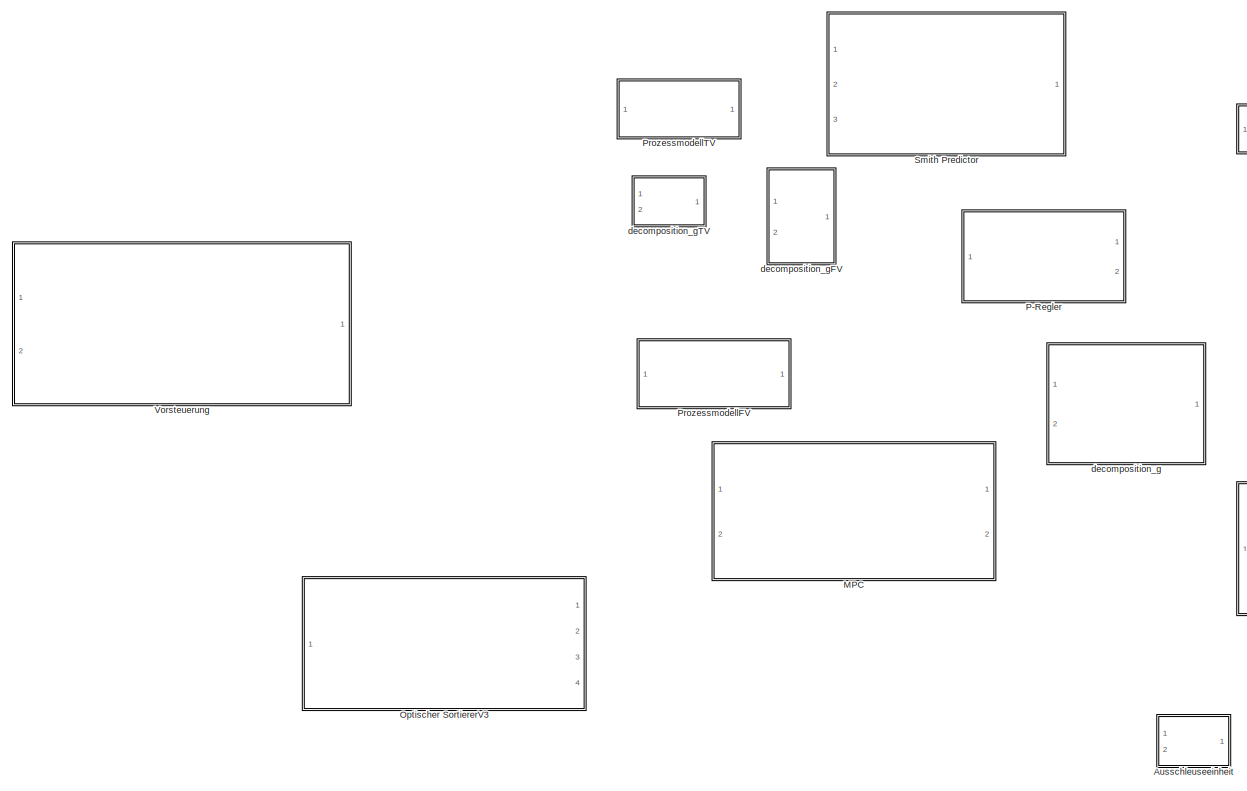
[diagram: root canvas - part 1/2, left side, full height]
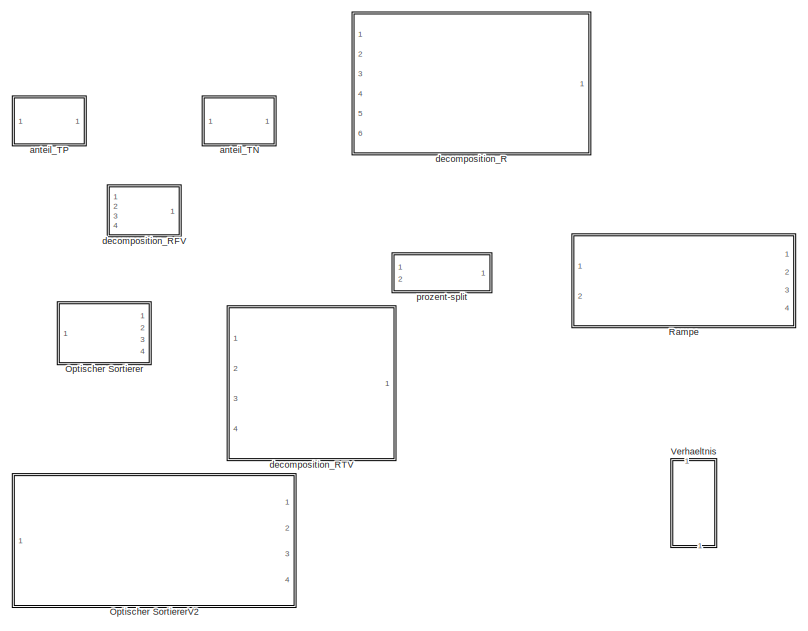
[diagram: root canvas - part 2/2, right side, full height]
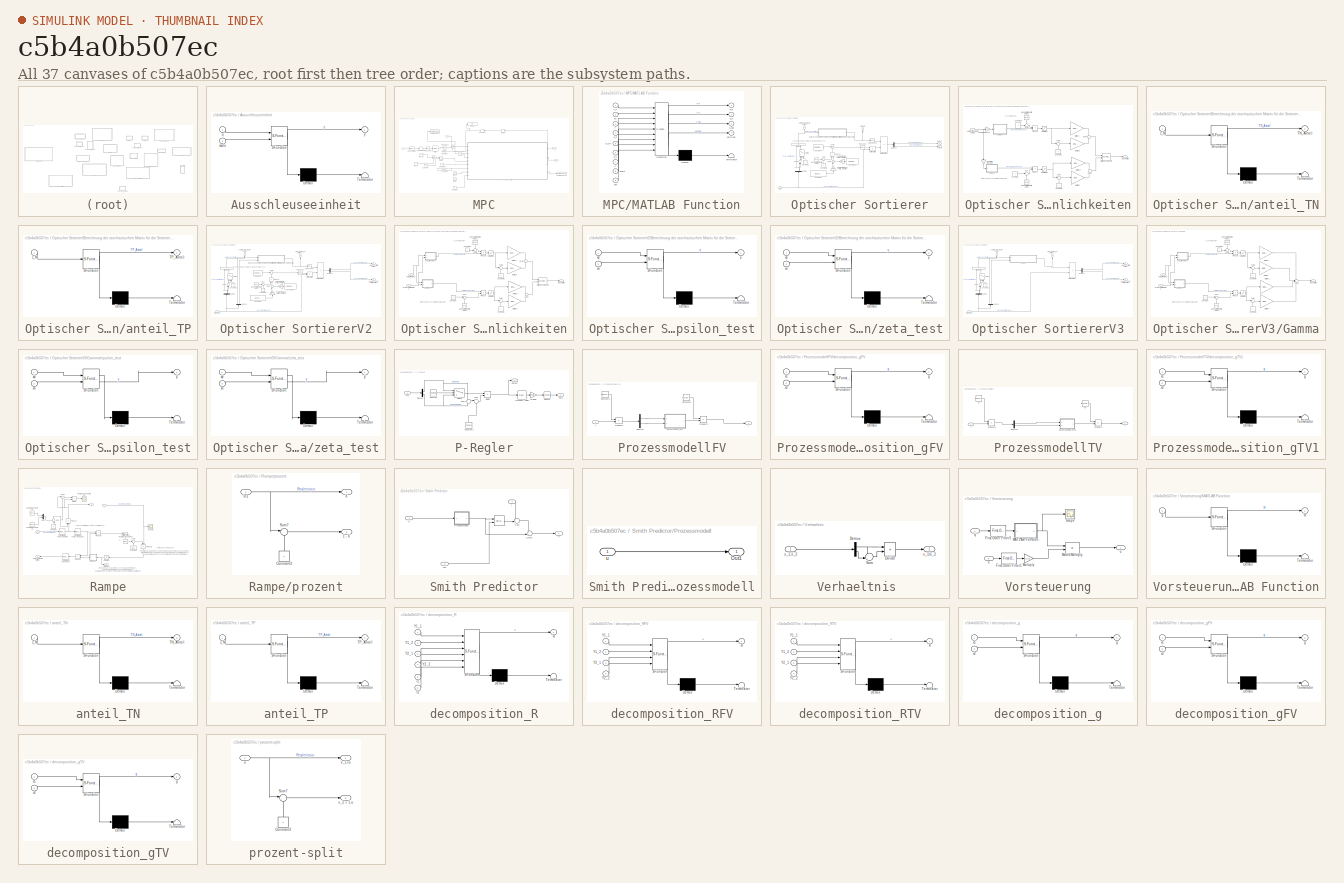
[diagram: thumbnail index - all 37 canvases of the model, root first then tree order]
MODEL slx_c5b4a0b507ec
KIND library
CONFIG AbsTol = auto
CONFIG EnableMultiTasking = off
CONFIG FixedStep = auto
CONFIG MaxStep = auto
CONFIG MinStep = auto
CONFIG RelTol = 1e-3
CONFIG SampleTimeConstraint = Unconstrained
CONFIG SolverName = VariableStepAuto
CONFIG StartTime = 0.0
CONFIG StopTime = 10.0
BLOCK [SubSystem] Ausschleuseeinheit
  ErrorFcn = Stateflow.Translate.translate
  PermitHierarchicalResolution = ExplicitOnly
  Ports = [2, 1]
  RequestExecContextInheritance = off
  SFBlockType = MATLAB Function
  TreatAsAtomicUnit = on
BLOCK [Demux] Ausschleuseeinheit/ Demux 
  Outputs = 1
  Ports = [1, 1]
BLOCK [S-Function] Ausschleuseeinheit/ SFunction 
  EnableBusSupport = off
  FunctionName = sf_sfun
  PortCounts = [2 2]
  Ports = [2, 2]
  SFcnIsStateOwnerBlock = off
  SFunctionDeploymentMode = off
  Tag = Stateflow S-Function 17
BLOCK [Terminator] Ausschleuseeinheit/ Terminator 
BLOCK [Inport] Ausschleuseeinheit/q
BLOCK [Inport] Ausschleuseeinheit/scale
  Port = 2
BLOCK [Outport] Ausschleuseeinheit/y
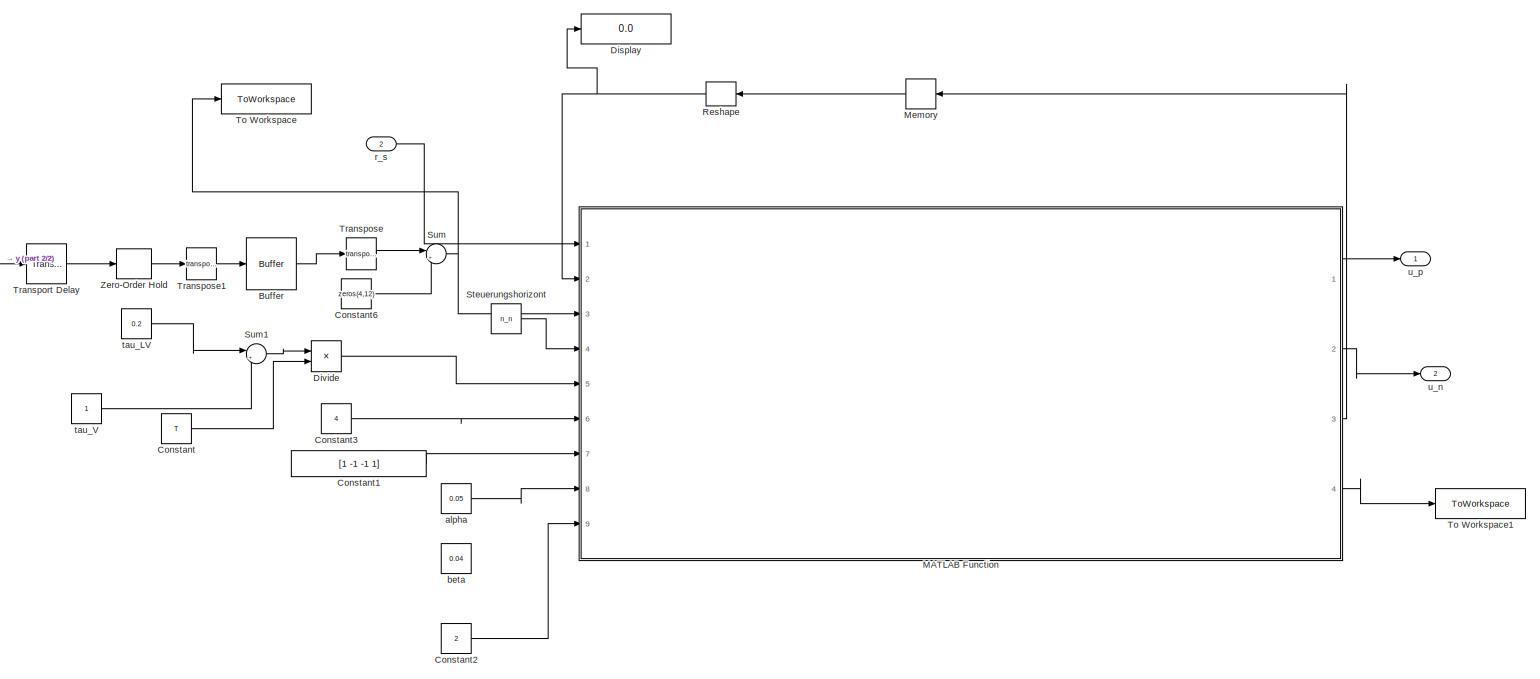
[diagram: MPC - part 1/2, most of the canvas]
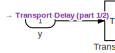
[diagram: MPC - part 2/2, middle left region]
BLOCK [SubSystem] MPC
  Ports = [2, 2]
  RequestExecContextInheritance = off
BLOCK [Buffer] MPC/Buffer
  N = n_n
  OutputFrames = off
  V = n_n-1
BLOCK [Constant] MPC/Constant
  Value = T
BLOCK [Constant] MPC/Constant1
  Value = [1 -1 -1 1]
BLOCK [Constant] MPC/Constant2
  Value = 2
BLOCK [Constant] MPC/Constant3
  Value = 4
BLOCK [Constant] MPC/Constant6
  Value = zeros(4,12)
BLOCK [Display] MPC/Display
  Decimation = 1
  Ports = [1]
BLOCK [Product] MPC/Divide
  Inputs = */
  Ports = [2, 1]
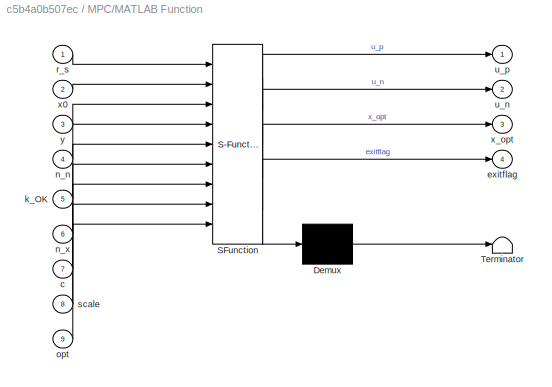
BLOCK [SubSystem] MPC/MATLAB Function
  ErrorFcn = Stateflow.Translate.translate
  PermitHierarchicalResolution = ExplicitOnly
  Ports = [9, 4]
  RequestExecContextInheritance = off
  SFBlockType = MATLAB Function
  SystemSampleTime = T
  TreatAsAtomicUnit = on
BLOCK [Demux] MPC/MATLAB Function/ Demux 
  Outputs = 1
  Ports = [1, 1]
BLOCK [S-Function] MPC/MATLAB Function/ SFunction 
  EnableBusSupport = off
  FunctionName = sf_sfun
  PortCounts = [9 5]
  Ports = [9, 5]
  SFcnIsStateOwnerBlock = off
  SFunctionDeploymentMode = off
  Tag = Stateflow S-Function 4
BLOCK [Terminator] MPC/MATLAB Function/ Terminator 
BLOCK [Inport] MPC/MATLAB Function/c
  Port = 7
BLOCK [Outport] MPC/MATLAB Function/exitflag
  Port = 4
BLOCK [Inport] MPC/MATLAB Function/k_OK
  Port = 5
BLOCK [Inport] MPC/MATLAB Function/n_n
  Port = 4
BLOCK [Inport] MPC/MATLAB Function/n_x
  Port = 6
BLOCK [Inport] MPC/MATLAB Function/opt
  Port = 9
BLOCK [Inport] MPC/MATLAB Function/r_s
BLOCK [Inport] MPC/MATLAB Function/scale
  Port = 8
BLOCK [Outport] MPC/MATLAB Function/u_n
  Port = 2
BLOCK [Outport] MPC/MATLAB Function/u_p
BLOCK [Inport] MPC/MATLAB Function/x0
  Port = 2
BLOCK [Outport] MPC/MATLAB Function/x_opt
  Port = 3
BLOCK [Inport] MPC/MATLAB Function/y
  Port = 3
BLOCK [Memory] MPC/Memory
  NameLocation = top
BLOCK [Reshape] MPC/Reshape
  NameLocation = top
  OutputDimensionality = Customize
  OutputDimensions = [48,1]
  Ports = [1, 1]
BLOCK [Constant] MPC/Steuerungshorizont
  Value = n_n
BLOCK [Sum] MPC/Sum
  Inputs = |++
  Ports = [2, 1]
BLOCK [Sum] MPC/Sum1
  Inputs = |++
  Ports = [2, 1]
BLOCK [ToWorkspace] MPC/To Workspace
  FixptAsFi = on
  MaxDataPoints = inf
  Ports = [1]
  SampleTime = -1
  SaveFormat = Timeseries
  VariableName = y
BLOCK [ToWorkspace] MPC/To Workspace1
  FixptAsFi = on
  MaxDataPoints = inf
  Ports = [1]
  SampleTime = -1
  SaveFormat = Timeseries
  VariableName = simout
BLOCK [TransportDelay] MPC/Transport Delay
  DelayTime = tau_SK
  Ports = [1, 1]
BLOCK [Math] MPC/Transpose
  Operator = transpose
  Ports = [1, 1]
BLOCK [Math] MPC/Transpose1
  Operator = transpose
  Ports = [1, 1]
BLOCK [ZeroOrderHold] MPC/Zero-Order Hold
  SampleTime = 0.1
BLOCK [Constant] MPC/alpha
  Value = 0.05
BLOCK [Constant] MPC/beta
  Value = 0.04
BLOCK [Inport] MPC/r_s
  Port = 2
BLOCK [Constant] MPC/tau_LV
  Value = 0.2
BLOCK [Constant] MPC/tau_V
BLOCK [Outport] MPC/u_n
  Port = 2
BLOCK [Outport] MPC/u_p
BLOCK [Inport] MPC/y
BLOCK [SubSystem] Optischer Sortierer
  Ports = [1, 4]
  RequestExecContextInheritance = off
BLOCK [Outport] Optischer Sortierer/Anteil Schlechtpartikel pro s
  NameLocation = right
  Port = 3
BLOCK [Reference] Optischer Sortierer/Band-Limited White Noise  REF=simulink/Sources/Band-Limited
White Noise
  Ports = [0, 1]
  SourceBlock = simulink/Sources/Band-Limited\nWhite Noise
  SourceProductBaseCode = SL
  SourceType = Band-Limited White Noise.
BLOCK [SubSystem] Optischer Sortierer/Berechnung der stochastischen Matrix für die Sortiererwahrscheinlichkeiten
  Ports = [1, 1]
  RequestExecContextInheritance = off
BLOCK [Inport] Optischer Sortierer/Berechnung der stochastischen Matrix für die Sortiererwahrscheinlichkeiten/Anteil Schlechtpartikel pro s
BLOCK [Reference] Optischer Sortierer/Berechnung der stochastischen Matrix für die Sortiererwahrscheinlichkeiten/Band-Limited White Noise  REF=simulink/Sources/Band-Limited
White Noise
  NameLocation = right
  Ports = [0, 1]
  SourceBlock = simulink/Sources/Band-Limited\nWhite Noise
  SourceProductBaseCode = SL
  SourceType = Band-Limited White Noise.
BLOCK [Reference] Optischer Sortierer/Berechnung der stochastischen Matrix für die Sortiererwahrscheinlichkeiten/Band-Limited White Noise1  REF=simulink/Sources/Band-Limited
White Noise
  NameLocation = left
  Ports = [0, 1]
  SourceBlock = simulink/Sources/Band-Limited\nWhite Noise
  SourceProductBaseCode = SL
  SourceType = Band-Limited White Noise.
BLOCK [Constant] Optischer Sortierer/Berechnung der stochastischen Matrix für die Sortiererwahrscheinlichkeiten/Constant
BLOCK [Constant] Optischer Sortierer/Berechnung der stochastischen Matrix für die Sortiererwahrscheinlichkeiten/Constant1
  NameLocation = right
BLOCK [Constant] Optischer Sortierer/Berechnung der stochastischen Matrix für die Sortiererwahrscheinlichkeiten/Constant2
  NameLocation = right
BLOCK [Constant] Optischer Sortierer/Berechnung der stochastischen Matrix für die Sortiererwahrscheinlichkeiten/Constant3
BLOCK [Gain] Optischer Sortierer/Berechnung der stochastischen Matrix für die Sortiererwahrscheinlichkeiten/Dezimal in Prozent
  Gain = 100
BLOCK [Gain] Optischer Sortierer/Berechnung der stochastischen Matrix für die Sortiererwahrscheinlichkeiten/Dezimal in Prozent2
  Gain = 100
  NameLocation = left
BLOCK [Concatenate] Optischer Sortierer/Berechnung der stochastischen Matrix für die Sortiererwahrscheinlichkeiten/Matrix Concatenate
  Mode = Multidimensional array
  Ports = [2, 1]
BLOCK [Gain] Optischer Sortierer/Berechnung der stochastischen Matrix für die Sortiererwahrscheinlichkeiten/Multiply1
  Gain = [1 0 0 0; 0 1 0 0]
BLOCK [Gain] Optischer Sortierer/Berechnung der stochastischen Matrix für die Sortiererwahrscheinlichkeiten/Multiply2
  Gain = [1 0 0 0; 0 1 0 0]
BLOCK [Gain] Optischer Sortierer/Berechnung der stochastischen Matrix für die Sortiererwahrscheinlichkeiten/Multiply3
  Gain = [0 0 1 0; 0 0 0 1]
BLOCK [Gain] Optischer Sortierer/Berechnung der stochastischen Matrix für die Sortiererwahrscheinlichkeiten/Multiply4
  Gain = [0 0 1 0; 0 0 0 1]
BLOCK [Product] Optischer Sortierer/Berechnung der stochastischen Matrix für die Sortiererwahrscheinlichkeiten/Product
  Ports = [2, 1]
BLOCK [Product] Optischer Sortierer/Berechnung der stochastischen Matrix für die Sortiererwahrscheinlichkeiten/Product1
  Ports = [2, 1]
BLOCK [Saturate] Optischer Sortierer/Berechnung der stochastischen Matrix für die Sortiererwahrscheinlichkeiten/Saturation
  LowerLimit = 0
  UpperLimit = 1
BLOCK [Saturate] Optischer Sortierer/Berechnung der stochastischen Matrix für die Sortiererwahrscheinlichkeiten/Saturation1
  LowerLimit = 0
  UpperLimit = 1
BLOCK [Sum] Optischer Sortierer/Berechnung der stochastischen Matrix für die Sortiererwahrscheinlichkeiten/Sum
  Inputs = |++
  Ports = [2, 1]
BLOCK [Sum] Optischer Sortierer/Berechnung der stochastischen Matrix für die Sortiererwahrscheinlichkeiten/Sum1
  Inputs = |-+
  Ports = [2, 1]
BLOCK [Sum] Optischer Sortierer/Berechnung der stochastischen Matrix für die Sortiererwahrscheinlichkeiten/Sum2
  Inputs = +|+
  Ports = [2, 1]
BLOCK [Sum] Optischer Sortierer/Berechnung der stochastischen Matrix für die Sortiererwahrscheinlichkeiten/Sum3
  Inputs = ++|
  Ports = [2, 1]
BLOCK [Sum] Optischer Sortierer/Berechnung der stochastischen Matrix für die Sortiererwahrscheinlichkeiten/Sum5
  Inputs = |-+
  Ports = [2, 1]
BLOCK [Sum] Optischer Sortierer/Berechnung der stochastischen Matrix für die Sortiererwahrscheinlichkeiten/Sum6
  Inputs = +|+
  Ports = [2, 1]
BLOCK [SubSystem] Optischer Sortierer/Berechnung der stochastischen Matrix für die Sortiererwahrscheinlichkeiten/anteil_TN
  ErrorFcn = Stateflow.Translate.translate
  PermitHierarchicalResolution = ExplicitOnly
  Ports = [1, 1]
  RequestExecContextInheritance = off
  SFBlockType = MATLAB Function
  TreatAsAtomicUnit = on
BLOCK [Demux] Optischer Sortierer/Berechnung der stochastischen Matrix für die Sortiererwahrscheinlichkeiten/anteil_TN/ Demux 
  Outputs = 1
  Ports = [1, 1]
BLOCK [S-Function] Optischer Sortierer/Berechnung der stochastischen Matrix für die Sortiererwahrscheinlichkeiten/anteil_TN/ SFunction 
  EnableBusSupport = off
  FunctionName = sf_sfun
  PortCounts = [1 2]
  Ports = [1, 2]
  SFcnIsStateOwnerBlock = off
  SFunctionDeploymentMode = off
  Tag = Stateflow S-Function 5
BLOCK [Terminator] Optischer Sortierer/Berechnung der stochastischen Matrix für die Sortiererwahrscheinlichkeiten/anteil_TN/ Terminator 
BLOCK [Outport] Optischer Sortierer/Berechnung der stochastischen Matrix für die Sortiererwahrscheinlichkeiten/anteil_TN/TN_Anteil
BLOCK [Inport] Optischer Sortierer/Berechnung der stochastischen Matrix für die Sortiererwahrscheinlichkeiten/anteil_TN/c_N
BLOCK [SubSystem] Optischer Sortierer/Berechnung der stochastischen Matrix für die Sortiererwahrscheinlichkeiten/anteil_TP
  ErrorFcn = Stateflow.Translate.translate
  PermitHierarchicalResolution = ExplicitOnly
  Ports = [1, 1]
  RequestExecContextInheritance = off
  SFBlockType = MATLAB Function
  TreatAsAtomicUnit = on
BLOCK [Demux] Optischer Sortierer/Berechnung der stochastischen Matrix für die Sortiererwahrscheinlichkeiten/anteil_TP/ Demux 
  Outputs = 1
  Ports = [1, 1]
BLOCK [S-Function] Optischer Sortierer/Berechnung der stochastischen Matrix für die Sortiererwahrscheinlichkeiten/anteil_TP/ SFunction 
  EnableBusSupport = off
  FunctionName = sf_sfun
  PortCounts = [1 2]
  Ports = [1, 2]
  SFcnIsStateOwnerBlock = off
  SFunctionDeploymentMode = off
  Tag = Stateflow S-Function 6
BLOCK [Terminator] Optischer Sortierer/Berechnung der stochastischen Matrix für die Sortiererwahrscheinlichkeiten/anteil_TP/ Terminator 
BLOCK [Outport] Optischer Sortierer/Berechnung der stochastischen Matrix für die Sortiererwahrscheinlichkeiten/anteil_TP/TP_Anteil
BLOCK [Inport] Optischer Sortierer/Berechnung der stochastischen Matrix für die Sortiererwahrscheinlichkeiten/anteil_TP/c_N
BLOCK [Outport] Optischer Sortierer/Berechnung der stochastischen Matrix für die Sortiererwahrscheinlichkeiten/stoch. Matrix
BLOCK [Constant] Optischer Sortierer/Constant
  Value = [1 0 0 0; 0 0 0 1]
BLOCK [Constant] Optischer Sortierer/Constant1
  Value = [-1 0 1 0; 0 0 0 0]
BLOCK [Constant] Optischer Sortierer/Constant2
  NameLocation = right
BLOCK [Constant] Optischer Sortierer/Constant4
  NameLocation = top
  Value = [0 0 0 0; 0 1 0 -1]
BLOCK [Constant] Optischer Sortierer/Constant5
  NameLocation = right
BLOCK [Demux] Optischer Sortierer/Demux
  NameLocation = right
  Outputs = 2
  Ports = [1, 2]
BLOCK [Demux] Optischer Sortierer/Demux1
  Outputs = 2
  Ports = [1, 2]
BLOCK [Product] Optischer Sortierer/Divide
  Inputs = */
  NameLocation = right
  Ports = [2, 1]
BLOCK [Inport] Optischer Sortierer/In2
BLOCK [Product] Optischer Sortierer/Matrix Multiply
  Multiplication = Matrix(*)
  Ports = [2, 1]
BLOCK [Product] Optischer Sortierer/Matrix Multiply1
  Multiplication = Matrix(*)
  Ports = [2, 1]
BLOCK [Outport] Optischer Sortierer/Output
BLOCK [Outport] Optischer Sortierer/Output1
  Port = 2
BLOCK [Outport] Optischer Sortierer/Output2
  NameLocation = right
  Port = 4
BLOCK [Gain] Optischer Sortierer/Parameter \alpha = Anteil falsch detektierter Gutpartikel
  Gain = alpha
  NameLocation = right
BLOCK [Gain] Optischer Sortierer/Parameter \beta = Anteil falsch detektierter Schlechtpartikel
  Gain = beta
  NameLocation = top
BLOCK [Product] Optischer Sortierer/Product
  NameLocation = right
  Ports = [2, 1]
BLOCK [Sum] Optischer Sortierer/Sum
  Inputs = |++
  Ports = [2, 1]
BLOCK [Sum] Optischer Sortierer/Sum2
  Inputs = |++
  Ports = [2, 1]
BLOCK [Sum] Optischer Sortierer/Sum3
  Inputs = |++
  NameLocation = right
  Ports = [2, 1]
BLOCK [Sum] Optischer Sortierer/Sum4
  Inputs = ++|
  NameLocation = right
  Ports = [2, 1]
BLOCK [Switch] Optischer Sortierer/Switch
  Criteria = u2 > Threshold
  InputSameDT = off
  NameLocation = right
  SaturateOnIntegerOverflow = off
BLOCK [Math] Optischer Sortierer/Transpose
  Operator = transpose
  Ports = [1, 1]
BLOCK [Math] Optischer Sortierer/Transpose1
  Operator = transpose
  Ports = [1, 1]
BLOCK [SubSystem] Optischer SortiererV2
  AncestorBlock = library_schuettgut/Optischer Sortierer
  Ports = [1, 4]
  RequestExecContextInheritance = off
BLOCK [Outport] Optischer SortiererV2/Als GUT sortierte Partikel
BLOCK [Outport] Optischer SortiererV2/Als SCHLECHT sortierte Partikel
  Port = 2
BLOCK [Outport] Optischer SortiererV2/Anteil Schlechtpartikel pro s
  NameLocation = right
  Port = 3
BLOCK [Reference] Optischer SortiererV2/Band-Limited White Noise  REF=simulink/Sources/Band-Limited
White Noise
  Ports = [0, 1]
  SourceBlock = simulink/Sources/Band-Limited\nWhite Noise
  SourceProductBaseCode = SL
  SourceType = Band-Limited White Noise.
BLOCK [SubSystem] Optischer SortiererV2/Berechnung der stochastischen Matrix für die Sortiererwahrscheinlichkeiten
  Ports = [2, 1]
  RequestExecContextInheritance = off
BLOCK [Reference] Optischer SortiererV2/Berechnung der stochastischen Matrix für die Sortiererwahrscheinlichkeiten/Band-Limited White Noise  REF=simulink/Sources/Band-Limited
White Noise
  NameLocation = right
  Ports = [0, 1]
  SourceBlock = simulink/Sources/Band-Limited\nWhite Noise
  SourceProductBaseCode = SL
  SourceType = Band-Limited White Noise.
BLOCK [Reference] Optischer SortiererV2/Berechnung der stochastischen Matrix für die Sortiererwahrscheinlichkeiten/Band-Limited White Noise1  REF=simulink/Sources/Band-Limited
White Noise
  NameLocation = left
  Ports = [0, 1]
  SourceBlock = simulink/Sources/Band-Limited\nWhite Noise
  SourceProductBaseCode = SL
  SourceType = Band-Limited White Noise.
BLOCK [Constant] Optischer SortiererV2/Berechnung der stochastischen Matrix für die Sortiererwahrscheinlichkeiten/Constant
BLOCK [Constant] Optischer SortiererV2/Berechnung der stochastischen Matrix für die Sortiererwahrscheinlichkeiten/Constant1
  NameLocation = right
BLOCK [Constant] Optischer SortiererV2/Berechnung der stochastischen Matrix für die Sortiererwahrscheinlichkeiten/Constant2
  NameLocation = right
BLOCK [Constant] Optischer SortiererV2/Berechnung der stochastischen Matrix für die Sortiererwahrscheinlichkeiten/Constant3
BLOCK [Inport] Optischer SortiererV2/Berechnung der stochastischen Matrix für die Sortiererwahrscheinlichkeiten/Gutpartikel pro s
BLOCK [Concatenate] Optischer SortiererV2/Berechnung der stochastischen Matrix für die Sortiererwahrscheinlichkeiten/Matrix Concatenate
  Mode = Multidimensional array
  Ports = [2, 1]
BLOCK [Gain] Optischer SortiererV2/Berechnung der stochastischen Matrix für die Sortiererwahrscheinlichkeiten/Multiply1
  Gain = [1 0 0 0; 0 1 0 0]
BLOCK [Gain] Optischer SortiererV2/Berechnung der stochastischen Matrix für die Sortiererwahrscheinlichkeiten/Multiply2
  Gain = [1 0 0 0; 0 1 0 0]
BLOCK [Gain] Optischer SortiererV2/Berechnung der stochastischen Matrix für die Sortiererwahrscheinlichkeiten/Multiply3
  Gain = [0 0 1 0; 0 0 0 1]
BLOCK [Gain] Optischer SortiererV2/Berechnung der stochastischen Matrix für die Sortiererwahrscheinlichkeiten/Multiply4
  Gain = [0 0 1 0; 0 0 0 1]
BLOCK [Product] Optischer SortiererV2/Berechnung der stochastischen Matrix für die Sortiererwahrscheinlichkeiten/Product
  Ports = [2, 1]
BLOCK [Product] Optischer SortiererV2/Berechnung der stochastischen Matrix für die Sortiererwahrscheinlichkeiten/Product1
  Ports = [2, 1]
BLOCK [Saturate] Optischer SortiererV2/Berechnung der stochastischen Matrix für die Sortiererwahrscheinlichkeiten/Saturation
  LowerLimit = 0
  UpperLimit = 1
BLOCK [Saturate] Optischer SortiererV2/Berechnung der stochastischen Matrix für die Sortiererwahrscheinlichkeiten/Saturation1
  LowerLimit = 0
  UpperLimit = 1
BLOCK [Inport] Optischer SortiererV2/Berechnung der stochastischen Matrix für die Sortiererwahrscheinlichkeiten/Schlechtpartikel pro s
  Port = 2
BLOCK [Sum] Optischer SortiererV2/Berechnung der stochastischen Matrix für die Sortiererwahrscheinlichkeiten/Sum
  Inputs = |++
  Ports = [2, 1]
BLOCK [Sum] Optischer SortiererV2/Berechnung der stochastischen Matrix für die Sortiererwahrscheinlichkeiten/Sum1
  Inputs = |-+
  Ports = [2, 1]
BLOCK [Sum] Optischer SortiererV2/Berechnung der stochastischen Matrix für die Sortiererwahrscheinlichkeiten/Sum2
  Inputs = +|+
  Ports = [2, 1]
BLOCK [Sum] Optischer SortiererV2/Berechnung der stochastischen Matrix für die Sortiererwahrscheinlichkeiten/Sum3
  Inputs = ++|
  Ports = [2, 1]
BLOCK [Sum] Optischer SortiererV2/Berechnung der stochastischen Matrix für die Sortiererwahrscheinlichkeiten/Sum5
  Inputs = |-+
  Ports = [2, 1]
BLOCK [Sum] Optischer SortiererV2/Berechnung der stochastischen Matrix für die Sortiererwahrscheinlichkeiten/Sum6
  Inputs = +|+
  Ports = [2, 1]
BLOCK [SubSystem] Optischer SortiererV2/Berechnung der stochastischen Matrix für die Sortiererwahrscheinlichkeiten/epsilon_test
  ErrorFcn = Stateflow.Translate.translate
  PermitHierarchicalResolution = ExplicitOnly
  Ports = [2, 1]
  RequestExecContextInheritance = off
  SFBlockType = MATLAB Function
  TreatAsAtomicUnit = on
BLOCK [Demux] Optischer SortiererV2/Berechnung der stochastischen Matrix für die Sortiererwahrscheinlichkeiten/epsilon_test/ Demux 
  Outputs = 1
  Ports = [1, 1]
BLOCK [S-Function] Optischer SortiererV2/Berechnung der stochastischen Matrix für die Sortiererwahrscheinlichkeiten/epsilon_test/ SFunction 
  EnableBusSupport = off
  FunctionName = sf_sfun
  PortCounts = [2 2]
  Ports = [2, 2]
  SFcnIsStateOwnerBlock = off
  SFunctionDeploymentMode = off
  Tag = Stateflow S-Function 8
BLOCK [Terminator] Optischer SortiererV2/Berechnung der stochastischen Matrix für die Sortiererwahrscheinlichkeiten/epsilon_test/ Terminator 
BLOCK [Inport] Optischer SortiererV2/Berechnung der stochastischen Matrix für die Sortiererwahrscheinlichkeiten/epsilon_test/xn
  Port = 2
BLOCK [Inport] Optischer SortiererV2/Berechnung der stochastischen Matrix für die Sortiererwahrscheinlichkeiten/epsilon_test/xp
BLOCK [Outport] Optischer SortiererV2/Berechnung der stochastischen Matrix für die Sortiererwahrscheinlichkeiten/epsilon_test/y
BLOCK [Outport] Optischer SortiererV2/Berechnung der stochastischen Matrix für die Sortiererwahrscheinlichkeiten/stoch. Matrix
BLOCK [SubSystem] Optischer SortiererV2/Berechnung der stochastischen Matrix für die Sortiererwahrscheinlichkeiten/zeta_test
  ErrorFcn = Stateflow.Translate.translate
  PermitHierarchicalResolution = ExplicitOnly
  Ports = [2, 1]
  RequestExecContextInheritance = off
  SFBlockType = MATLAB Function
  TreatAsAtomicUnit = on
BLOCK [Demux] Optischer SortiererV2/Berechnung der stochastischen Matrix für die Sortiererwahrscheinlichkeiten/zeta_test/ Demux 
  Outputs = 1
  Ports = [1, 1]
BLOCK [S-Function] Optischer SortiererV2/Berechnung der stochastischen Matrix für die Sortiererwahrscheinlichkeiten/zeta_test/ SFunction 
  EnableBusSupport = off
  FunctionName = sf_sfun
  PortCounts = [2 2]
  Ports = [2, 2]
  SFcnIsStateOwnerBlock = off
  SFunctionDeploymentMode = off
  Tag = Stateflow S-Function 9
BLOCK [Terminator] Optischer SortiererV2/Berechnung der stochastischen Matrix für die Sortiererwahrscheinlichkeiten/zeta_test/ Terminator 
BLOCK [Inport] Optischer SortiererV2/Berechnung der stochastischen Matrix für die Sortiererwahrscheinlichkeiten/zeta_test/xn
  Port = 2
BLOCK [Inport] Optischer SortiererV2/Berechnung der stochastischen Matrix für die Sortiererwahrscheinlichkeiten/zeta_test/xp
BLOCK [Outport] Optischer SortiererV2/Berechnung der stochastischen Matrix für die Sortiererwahrscheinlichkeiten/zeta_test/y
BLOCK [Constant] Optischer SortiererV2/Constant
  Value = [1 0 0 0; 0 0 0 1]
BLOCK [Constant] Optischer SortiererV2/Constant1
  Value = [-1 0 1 0; 0 0 0 0]
BLOCK [Constant] Optischer SortiererV2/Constant2
  NameLocation = right
BLOCK [Constant] Optischer SortiererV2/Constant4
  NameLocation = top
  Value = [0 0 0 0; 0 1 0 -1]
BLOCK [Constant] Optischer SortiererV2/Constant5
  NameLocation = right
BLOCK [Demux] Optischer SortiererV2/Demux
  NameLocation = right
  Outputs = 2
  Ports = [1, 2]
BLOCK [Demux] Optischer SortiererV2/Demux1
  Outputs = 2
  Ports = [1, 2]
BLOCK [Demux] Optischer SortiererV2/Demux2
  NameLocation = right
  Outputs = 2
  Ports = [1, 2]
BLOCK [Product] Optischer SortiererV2/Divide
  Inputs = */
  NameLocation = right
  Ports = [2, 1]
BLOCK [Product] Optischer SortiererV2/Matrix Multiply
  Multiplication = Matrix(*)
  Ports = [2, 1]
BLOCK [Product] Optischer SortiererV2/Matrix Multiply1
  Multiplication = Matrix(*)
  Ports = [2, 1]
BLOCK [Gain] Optischer SortiererV2/Parameter \alpha = Anteil falsch detektierter Gutpartikel
  Gain = alpha
  NameLocation = right
BLOCK [Gain] Optischer SortiererV2/Parameter \beta = Anteil falsch detektierter Schlechtpartikel
  Gain = beta
  NameLocation = top
BLOCK [Inport] Optischer SortiererV2/Partikel pro s
BLOCK [Product] Optischer SortiererV2/Product
  NameLocation = right
  Ports = [2, 1]
BLOCK [Sum] Optischer SortiererV2/Sum
  Inputs = |++
  Ports = [2, 1]
BLOCK [Sum] Optischer SortiererV2/Sum2
  Inputs = |++
  Ports = [2, 1]
BLOCK [Sum] Optischer SortiererV2/Sum3
  Inputs = |++
  NameLocation = right
  Ports = [2, 1]
BLOCK [Sum] Optischer SortiererV2/Sum4
  Inputs = ++|
  NameLocation = right
  Ports = [2, 1]
BLOCK [Switch] Optischer SortiererV2/Switch
  Criteria = u2 > Threshold
  InputSameDT = off
  NameLocation = right
  SaturateOnIntegerOverflow = off
BLOCK [Math] Optischer SortiererV2/Transpose
  Operator = transpose
  Ports = [1, 1]
BLOCK [Math] Optischer SortiererV2/Transpose1
  Operator = transpose
  Ports = [1, 1]
BLOCK [Outport] Optischer SortiererV2/stochastische Matrix F_A
  NameLocation = right
  Port = 4
BLOCK [SubSystem] Optischer SortiererV3
  AncestorBlock = library_schuettgut/Optischer SortiererV2
  Ports = [1, 4]
  RequestExecContextInheritance = off
BLOCK [Outport] Optischer SortiererV3/Als GUT sortierte Partikel
BLOCK [Outport] Optischer SortiererV3/Als SCHLECHT sortierte Partikel
  Port = 2
BLOCK [Outport] Optischer SortiererV3/Anteil Schlechtpartikel pro s
  NameLocation = right
  Port = 3
BLOCK [Constant] Optischer SortiererV3/Constant2
  NameLocation = right
BLOCK [Demux] Optischer SortiererV3/Demux
  NameLocation = right
  Outputs = 2
  Ports = [1, 2]
BLOCK [Demux] Optischer SortiererV3/Demux1
  Outputs = 2
  Ports = [1, 2]
BLOCK [Demux] Optischer SortiererV3/Demux2
  NameLocation = right
  Outputs = 2
  Ports = [1, 2]
BLOCK [Product] Optischer SortiererV3/Divide
  Inputs = */
  NameLocation = right
  Ports = [2, 1]
BLOCK [SubSystem] Optischer SortiererV3/Gamma
  Ports = [2, 1]
  RequestExecContextInheritance = off
BLOCK [Reference] Optischer SortiererV3/Gamma/Band-Limited White Noise  REF=simulink/Sources/Band-Limited
White Noise
  NameLocation = right
  Ports = [0, 1]
  SourceBlock = simulink/Sources/Band-Limited\nWhite Noise
  SourceProductBaseCode = SL
  SourceType = Band-Limited White Noise.
BLOCK [Reference] Optischer SortiererV3/Gamma/Band-Limited White Noise1  REF=simulink/Sources/Band-Limited
White Noise
  NameLocation = left
  Ports = [0, 1]
  SourceBlock = simulink/Sources/Band-Limited\nWhite Noise
  SourceProductBaseCode = SL
  SourceType = Band-Limited White Noise.
BLOCK [Constant] Optischer SortiererV3/Gamma/Constant
BLOCK [Constant] Optischer SortiererV3/Gamma/Constant1
  NameLocation = right
BLOCK [Constant] Optischer SortiererV3/Gamma/Constant2
  NameLocation = right
BLOCK [Constant] Optischer SortiererV3/Gamma/Constant3
BLOCK [Inport] Optischer SortiererV3/Gamma/Gutpartikel pro s
BLOCK [Gain] Optischer SortiererV3/Gamma/Multiply1
  Gain = [1 0;0 0;0 0;0 0]
BLOCK [Gain] Optischer SortiererV3/Gamma/Multiply2
  Gain = [0 0;0 0;1 0;0 0]
BLOCK [Gain] Optischer SortiererV3/Gamma/Multiply3
  Gain = [0 0;0 0;0 0;0 1]
BLOCK [Gain] Optischer SortiererV3/Gamma/Multiply4
  Gain = [0 0;0 1;0 0;0 0]
BLOCK [Product] Optischer SortiererV3/Gamma/Product
  Ports = [2, 1]
BLOCK [Product] Optischer SortiererV3/Gamma/Product1
  Ports = [2, 1]
BLOCK [Saturate] Optischer SortiererV3/Gamma/Saturation
  LowerLimit = 0
  UpperLimit = 1
BLOCK [Saturate] Optischer SortiererV3/Gamma/Saturation1
  LowerLimit = 0
  UpperLimit = 1
BLOCK [Inport] Optischer SortiererV3/Gamma/Schlechtpartikel pro s
  Port = 2
BLOCK [Sum] Optischer SortiererV3/Gamma/Sum
  Inputs = |++
  Ports = [2, 1]
BLOCK [Sum] Optischer SortiererV3/Gamma/Sum1
  Inputs = |-+
  Ports = [2, 1]
BLOCK [Sum] Optischer SortiererV3/Gamma/Sum3
  Inputs = ++|
  Ports = [2, 1]
BLOCK [Sum] Optischer SortiererV3/Gamma/Sum4
  Inputs = ++++
  Ports = [4, 1]
BLOCK [Sum] Optischer SortiererV3/Gamma/Sum5
  Inputs = |-+
  Ports = [2, 1]
BLOCK [SubSystem] Optischer SortiererV3/Gamma/epsilon_test
  ErrorFcn = Stateflow.Translate.translate
  PermitHierarchicalResolution = ExplicitOnly
  Ports = [2, 1]
  RequestExecContextInheritance = off
  SFBlockType = MATLAB Function
  TreatAsAtomicUnit = on
BLOCK [Demux] Optischer SortiererV3/Gamma/epsilon_test/ Demux 
  Outputs = 1
  Ports = [1, 1]
BLOCK [S-Function] Optischer SortiererV3/Gamma/epsilon_test/ SFunction 
  EnableBusSupport = off
  FunctionName = sf_sfun
  PortCounts = [2 2]
  Ports = [2, 2]
  SFcnIsStateOwnerBlock = off
  SFunctionDeploymentMode = off
  Tag = Stateflow S-Function 18
BLOCK [Terminator] Optischer SortiererV3/Gamma/epsilon_test/ Terminator 
BLOCK [Inport] Optischer SortiererV3/Gamma/epsilon_test/xn
  Port = 2
BLOCK [Inport] Optischer SortiererV3/Gamma/epsilon_test/xp
BLOCK [Outport] Optischer SortiererV3/Gamma/epsilon_test/y
BLOCK [Outport] Optischer SortiererV3/Gamma/stoch. Matrix
BLOCK [SubSystem] Optischer SortiererV3/Gamma/zeta_test
  ErrorFcn = Stateflow.Translate.translate
  PermitHierarchicalResolution = ExplicitOnly
  Ports = [2, 1]
  RequestExecContextInheritance = off
  SFBlockType = MATLAB Function
  TreatAsAtomicUnit = on
BLOCK [Demux] Optischer SortiererV3/Gamma/zeta_test/ Demux 
  Outputs = 1
  Ports = [1, 1]
BLOCK [S-Function] Optischer SortiererV3/Gamma/zeta_test/ SFunction 
  EnableBusSupport = off
  FunctionName = sf_sfun
  PortCounts = [2 2]
  Ports = [2, 2]
  SFcnIsStateOwnerBlock = off
  SFunctionDeploymentMode = off
  Tag = Stateflow S-Function 19
BLOCK [Terminator] Optischer SortiererV3/Gamma/zeta_test/ Terminator 
BLOCK [Inport] Optischer SortiererV3/Gamma/zeta_test/xn
  Port = 2
BLOCK [Inport] Optischer SortiererV3/Gamma/zeta_test/xp
BLOCK [Outport] Optischer SortiererV3/Gamma/zeta_test/y
BLOCK [Product] Optischer SortiererV3/Matrix Multiply1
  Multiplication = Matrix(*)
  Ports = [2, 1]
BLOCK [Inport] Optischer SortiererV3/Partikel pro s
BLOCK [Sum] Optischer SortiererV3/Sum4
  Inputs = ++|
  NameLocation = right
  Ports = [2, 1]
BLOCK [Switch] Optischer SortiererV3/Switch
  Criteria = u2 > Threshold
  InputSameDT = off
  NameLocation = right
  SaturateOnIntegerOverflow = off
BLOCK [Outport] Optischer SortiererV3/stochastische Matrix F_A
  NameLocation = right
  Port = 4
BLOCK [SubSystem] P-Regler
  Ports = [1, 2]
  RequestExecContextInheritance = off
BLOCK [Constant] P-Regler/Constant
  Value = TrueorFalse
BLOCK [Constant] P-Regler/Constant1
  NameLocation = right
  Value = 0.00001
BLOCK [Demux] P-Regler/Demux
  Outputs = 2
  Ports = [1, 2]
BLOCK [Product] P-Regler/Divide
  Inputs = */
  Ports = [2, 1]
BLOCK [Inport] P-Regler/In1
BLOCK [Gain] P-Regler/Multiply
  Gain = gain
BLOCK [Outport] P-Regler/Out1
BLOCK [Outport] P-Regler/Output
  Port = 2
BLOCK [Math] P-Regler/Square
  Operator = square
  Ports = [1, 1]
BLOCK [Sum] P-Regler/Sum
  Inputs = |++
  Ports = [2, 1]
BLOCK [Sum] P-Regler/Sum1
  Inputs = +|+
  Ports = [2, 1]
BLOCK [Switch] P-Regler/Switch
  Criteria = u2 > Threshold
  InputSameDT = off
  SaturateOnIntegerOverflow = off
  Threshold = 1.5
BLOCK [TransportDelay] P-Regler/Transport Delay
  DelayTime = delay
  Ports = [1, 1]
BLOCK [SubSystem] ProzessmodellFV
  Ports = [1, 1]
  RequestExecContextInheritance = off
BLOCK [Constant] ProzessmodellFV/Constant2
  Value = [[-1.4351    0.6740\n ];[    0.9892    1.5087]]
BLOCK [Constant] ProzessmodellFV/Constant3
  Value = [[0.6913   -1.6000\n ];[  -1.1850   -1.1516]]
BLOCK [Demux] ProzessmodellFV/Demux1
  Outputs = 2
  Ports = [1, 2]
BLOCK [Product] ProzessmodellFV/Product2
  Multiplication = Matrix(*)
  Ports = [2, 1]
BLOCK [Product] ProzessmodellFV/Product3
  Multiplication = Matrix(*)
  Ports = [2, 1]
BLOCK [SubSystem] ProzessmodellFV/decomposition_gFV
  ErrorFcn = Stateflow.Translate.translate
  PermitHierarchicalResolution = ExplicitOnly
  Ports = [2, 1]
  RequestExecContextInheritance = off
  SFBlockType = MATLAB Function
  TreatAsAtomicUnit = on
BLOCK [Demux] ProzessmodellFV/decomposition_gFV/ Demux 
  Outputs = 1
  Ports = [1, 1]
BLOCK [S-Function] ProzessmodellFV/decomposition_gFV/ SFunction 
  EnableBusSupport = off
  FunctionName = sf_sfun
  PortCounts = [2 2]
  Ports = [2, 2]
  SFcnIsStateOwnerBlock = off
  SFunctionDeploymentMode = off
  Tag = Stateflow S-Function 3
BLOCK [Terminator] ProzessmodellFV/decomposition_gFV/ Terminator 
BLOCK [Outport] ProzessmodellFV/decomposition_gFV/g
BLOCK [Inport] ProzessmodellFV/decomposition_gFV/x1
BLOCK [Inport] ProzessmodellFV/decomposition_gFV/x2
  Port = 2
BLOCK [Inport] ProzessmodellFV/x
BLOCK [Outport] ProzessmodellFV/y
BLOCK [SubSystem] ProzessmodellTV
  Ports = [1, 1]
  RequestExecContextInheritance = off
BLOCK [Demux] ProzessmodellTV/Demux1
  Outputs = 2
  Ports = [1, 2]
BLOCK [Constant] ProzessmodellTV/G
  Value = [[-2.401,2.5324];[-2.3087, -2.2113]]
BLOCK [Product] ProzessmodellTV/Product2
  Multiplication = Matrix(*)
  Ports = [2, 1]
BLOCK [Product] ProzessmodellTV/Product3
  Multiplication = Matrix(*)
  Ports = [2, 1]
BLOCK [Constant] ProzessmodellTV/W
  Value = [[2.4028, 2.3961];[-2.3785, 2.1163]]
BLOCK [SubSystem] ProzessmodellTV/decomposition_gTV1
  ErrorFcn = Stateflow.Translate.translate
  PermitHierarchicalResolution = ExplicitOnly
  Ports = [2, 1]
  RequestExecContextInheritance = off
  SFBlockType = MATLAB Function
  TreatAsAtomicUnit = on
BLOCK [Demux] ProzessmodellTV/decomposition_gTV1/ Demux 
  Outputs = 1
  Ports = [1, 1]
BLOCK [S-Function] ProzessmodellTV/decomposition_gTV1/ SFunction 
  EnableBusSupport = off
  FunctionName = sf_sfun
  PortCounts = [2 2]
  Ports = [2, 2]
  SFcnIsStateOwnerBlock = off
  SFunctionDeploymentMode = off
  Tag = Stateflow S-Function 16
BLOCK [Terminator] ProzessmodellTV/decomposition_gTV1/ Terminator 
BLOCK [Outport] ProzessmodellTV/decomposition_gTV1/g
BLOCK [Inport] ProzessmodellTV/decomposition_gTV1/x1
BLOCK [Inport] ProzessmodellTV/decomposition_gTV1/x2
  Port = 2
BLOCK [Inport] ProzessmodellTV/x
BLOCK [Outport] ProzessmodellTV/y
BLOCK [SubSystem] Rampe
  Ports = [2, 4]
  RequestExecContextInheritance = off
  Tag = Rampe
BLOCK [Constant] Rampe/Constant
  NameLocation = right
BLOCK [Constant] Rampe/Constant1
  NameLocation = right
  Value = [1,1]
BLOCK [Product] Rampe/Divide
  Inputs = */
  Ports = [2, 1]
BLOCK [Inport] Rampe/In1
BLOCK [Reference] Rampe/Kamera- messfehlerN  REF=simulink/Sources/Band-Limited
White Noise
  NameLocation = top
  Ports = [0, 1]
  SourceBlock = simulink/Sources/Band-Limited\nWhite Noise
  SourceProductBaseCode = SL
  SourceType = Band-Limited White Noise.
BLOCK [Reference] Rampe/Kamera- messfehlerP  REF=simulink/Sources/Band-Limited
White Noise
  NameLocation = top
  Ports = [0, 1]
  SourceBlock = simulink/Sources/Band-Limited\nWhite Noise
  SourceProductBaseCode = SL
  SourceType = Band-Limited White Noise.
BLOCK [Scope] Rampe/Kameraungenauigkeit
  Floating = off
  NumInputPorts = 1
  Ports = [1]
  ScopeSpecificationString = Simulink.scopes.TimeScopeBlockCfg('CurrentConfiguration', extmgr.ConfigurationSet(extmgr.Configuration('Core','General UI',true),extmgr.Configuration('Core','Source UI',true),extmgr.Configuration('Sources','WiredSimulink',true,'DataLoggingVariableName','ScopeData1'),extmgr.Configuration('Visuals','Time Domain',true),extmgr.Configuration('Tools','Plot Navigation',true),extmgr.Configuration('Tools',...<+40ch>
BLOCK [Mux] Rampe/Mux
  DisplayOption = bar
  Inputs = 2
  Ports = [2, 1]
BLOCK [Product] Rampe/Product
  NameLocation = right
  Ports = [2, 1]
BLOCK [Product] Rampe/Product1
  NameLocation = left
  OutMax = 1
  OutMin = 0
  Ports = [2, 1]
BLOCK [Product] Rampe/Product4
  Ports = [2, 1]
BLOCK [Product] Rampe/Product5
  Ports = [2, 1]
BLOCK [Reference] Rampe/Reglerungenauigkeit  REF=simulink/Sources/Band-Limited
White Noise
  NameLocation = top
  Ports = [0, 1]
  SourceBlock = simulink/Sources/Band-Limited\nWhite Noise
  SourceProductBaseCode = SL
  SourceType = Band-Limited White Noise.
BLOCK [Saturate] Rampe/Saturation
  LowerLimit = 0
  NameLocation = top
  UpperLimit = 1
BLOCK [Scope] Rampe/Scope: u
  Floating = off
  NumInputPorts = 1
  Ports = [1]
  ScopeSpecificationString = Simulink.scopes.TimeScopeBlockCfg('CurrentConfiguration', extmgr.ConfigurationSet(extmgr.Configuration('Core','General UI',true),extmgr.Configuration('Core','Source UI',true),extmgr.Configuration('Sources','WiredSimulink',true),extmgr.Configuration('Visuals','Time Domain',true),extmgr.Configuration('Tools','Plot Navigation',true),extmgr.Configuration('Tools','Measurements',true)),'Version','2020a'...<+1ch>
BLOCK [Outport] Rampe/Sortierte Partikel
  IconDisplay = Signal name
  Port = 2
BLOCK [Outport] Rampe/Stellgröße
  Port = 3
BLOCK [Sum] Rampe/Sum
  Inputs = ++|
  NameLocation = right
  Ports = [2, 1]
BLOCK [Sum] Rampe/Sum1
  Inputs = |++
  Ports = [2, 1]
BLOCK [Sum] Rampe/Sum2
  Inputs = |+-
  Ports = [2, 1]
BLOCK [TransportDelay] Rampe/Totzeit durch Abstand Kamera-Sauger
  DelayTime = KV
  Ports = [1, 1]
BLOCK [TransportDelay] Rampe/Totzeit durch Abstand Optischer Sortierer -Kamera
  DelayTime = OK
  Ports = [1, 1]
BLOCK [TransportDelay] Rampe/Totzeit durch absaugen
  DelayTime = V
  NameLocation = top
  Ports = [1, 1]
BLOCK [Outport] Rampe/Zurückgeführte Partikel
  IconDisplay = Signal name
  NameLocation = top
BLOCK [SubSystem] Rampe/prozent
  PortSchema = {"entries":[{"content":{"sides":[{"content":{"connectorIds":["In1"]},"type":"ConnectorPlacement.EquallySpacedRectSide","uuid":"ab8511c8-9f1d-48ad-bf24-85fd477f0bdd"},{"content":{"connectorIds":["Out1"],"side":"RIGHT"},"type":"ConnectorPlacement.EquallySpacedRectSide","uuid":"9ac1a19a-8176-444e-9f4d-7beffa0184e3"},{"content":{"connectorIds":["Out2"],"side":"TOP"},"type":"ConnectorPlacement.EquallyS...<+248ch>
  Ports = [1, 2]
  RequestExecContextInheritance = off
BLOCK [Outport] Rampe/prozent/1 - X
  Port = 2
BLOCK [Constant] Rampe/prozent/Constant3
  NameLocation = right
BLOCK [Inport] Rampe/prozent/In1
BLOCK [Sum] Rampe/prozent/Sum7
  Inputs = |-+
  Ports = [2, 1]
BLOCK [Outport] Rampe/prozent/X
BLOCK [Inport] Rampe/u
  Port = 2
BLOCK [Outport] Rampe/y
  Port = 4
BLOCK [SubSystem] Smith Predictor
  Ports = [3, 1]
  RequestExecContextInheritance = off
BLOCK [VariableTransportDelay] Smith Predictor/ 
  MaximumDelay = 10
  MaximumPoints = 30000
  Ports = [2, 1]
  VariableDelayType = Variable transport delay
BLOCK [SubSystem] Smith Predictor/Prozessmodell
  Ports = [1, 1]
  RequestExecContextInheritance = off
BLOCK [Outport] Smith Predictor/Prozessmodell/Out1
BLOCK [Inport] Smith Predictor/Prozessmodell/u
BLOCK [Sum] Smith Predictor/Sum
  Inputs = +-|
  Ports = [2, 1]
BLOCK [Sum] Smith Predictor/Sum1
  Inputs = ++|
  Ports = [2, 1]
BLOCK [Inport] Smith Predictor/tau
  Port = 3
BLOCK [Inport] Smith Predictor/u
BLOCK [Inport] Smith Predictor/y
  Port = 2
BLOCK [Outport] Smith Predictor/y*
BLOCK [SubSystem] Verhaeltnis 
  NameLocation = left
  Ports = [1, 1]
  RequestExecContextInheritance = off
BLOCK [Demux] Verhaeltnis /Demux
  Outputs = 2
  Ports = [1, 2]
BLOCK [Product] Verhaeltnis /Divide
  Inputs = */
  Ports = [2, 1]
BLOCK [Sum] Verhaeltnis /Sum
  Inputs = ++|
  Ports = [2, 1]
BLOCK [Inport] Verhaeltnis /x_1,x_2
BLOCK [Outport] Verhaeltnis /x_1//x_2
BLOCK [SubSystem] Vorsteuerung
  Ports = [2, 1]
  RequestExecContextInheritance = off
BLOCK [Reference] Vorsteuerung/First-Order Filter1  REF=powerlib_meascontrol/Filters/First-Order
Filter
  Ports = [1, 1]
  SourceBlock = powerlib_meascontrol/Filters/First-Order\nFilter
  SourceProductBaseCode = PS
  SourceType = First-Order Filter
BLOCK [Reference] Vorsteuerung/First-Order Filter3  REF=powerlib_meascontrol/Filters/First-Order
Filter
  Ports = [1, 1]
  SourceBlock = powerlib_meascontrol/Filters/First-Order\nFilter
  SourceProductBaseCode = PS
  SourceType = First-Order Filter
BLOCK [SubSystem] Vorsteuerung/MATLAB Function
  ErrorFcn = Stateflow.Translate.translate
  PermitHierarchicalResolution = ExplicitOnly
  Ports = [1, 1]
  RequestExecContextInheritance = off
  SFBlockType = MATLAB Function
  TreatAsAtomicUnit = on
BLOCK [Demux] Vorsteuerung/MATLAB Function/ Demux 
  Outputs = 1
  Ports = [1, 1]
BLOCK [S-Function] Vorsteuerung/MATLAB Function/ SFunction 
  EnableBusSupport = off
  FunctionName = sf_sfun
  PortCounts = [1 2]
  Ports = [1, 2]
  SFcnIsStateOwnerBlock = off
  SFunctionDeploymentMode = off
  Tag = Stateflow S-Function 13
BLOCK [Terminator] Vorsteuerung/MATLAB Function/ Terminator 
BLOCK [Outport] Vorsteuerung/MATLAB Function/R
BLOCK [Inport] Vorsteuerung/MATLAB Function/q
BLOCK [Product] Vorsteuerung/Matrix Multiply
  Multiplication = Matrix(*)
  Ports = [2, 1]
BLOCK [Gain] Vorsteuerung/Multiply
  Gain = [1;2]
BLOCK [Scope] Vorsteuerung/Scope
  Floating = off
  NumInputPorts = 1
  Ports = [1]
  ScopeSpecificationString = Simulink.scopes.TimeScopeBlockCfg('CurrentConfiguration', extmgr.ConfigurationSet(extmgr.Configuration('Core','General UI',true),extmgr.Configuration('Core','Source UI',true),extmgr.Configuration('Sources','WiredSimulink',true,'DataLoggingVariableName','ScopeData1'),extmgr.Configuration('Visuals','Time Domain',true),extmgr.Configuration('Tools','Plot Navigation',true),extmgr.Configuration('Tools',...<+40ch>
BLOCK [Inport] Vorsteuerung/e
  Port = 2
BLOCK [Inport] Vorsteuerung/q
BLOCK [Outport] Vorsteuerung/u
BLOCK [SubSystem] anteil_TN
  ErrorFcn = Stateflow.Translate.translate
  PermitHierarchicalResolution = ExplicitOnly
  Ports = [1, 1]
  RequestExecContextInheritance = off
  SFBlockType = MATLAB Function
  TreatAsAtomicUnit = on
BLOCK [Demux] anteil_TN/ Demux 
  Outputs = 1
  Ports = [1, 1]
BLOCK [S-Function] anteil_TN/ SFunction 
  EnableBusSupport = off
  FunctionName = sf_sfun
  PortCounts = [1 2]
  Ports = [1, 2]
  SFcnIsStateOwnerBlock = off
  SFunctionDeploymentMode = off
  Tag = Stateflow S-Function 1
BLOCK [Terminator] anteil_TN/ Terminator 
BLOCK [Outport] anteil_TN/TN_Anteil
BLOCK [Inport] anteil_TN/c_N
BLOCK [SubSystem] anteil_TP
  ErrorFcn = Stateflow.Translate.translate
  PermitHierarchicalResolution = ExplicitOnly
  Ports = [1, 1]
  RequestExecContextInheritance = off
  SFBlockType = MATLAB Function
  TreatAsAtomicUnit = on
BLOCK [Demux] anteil_TP/ Demux 
  Outputs = 1
  Ports = [1, 1]
BLOCK [S-Function] anteil_TP/ SFunction 
  EnableBusSupport = off
  FunctionName = sf_sfun
  PortCounts = [1 2]
  Ports = [1, 2]
  SFcnIsStateOwnerBlock = off
  SFunctionDeploymentMode = off
  Tag = Stateflow S-Function 2
BLOCK [Terminator] anteil_TP/ Terminator 
BLOCK [Outport] anteil_TP/TP_Anteil
BLOCK [Inport] anteil_TP/c_N
BLOCK [SubSystem] decomposition_R
  ErrorFcn = Stateflow.Translate.translate
  PermitHierarchicalResolution = ExplicitOnly
  Ports = [6, 1]
  RequestExecContextInheritance = off
  SFBlockType = MATLAB Function
  TreatAsAtomicUnit = on
BLOCK [Demux] decomposition_R/ Demux 
  Outputs = 1
  Ports = [1, 1]
BLOCK [S-Function] decomposition_R/ SFunction 
  EnableBusSupport = off
  FunctionName = sf_sfun
  PortCounts = [6 2]
  Ports = [6, 2]
  SFcnIsStateOwnerBlock = off
  SFunctionDeploymentMode = off
  Tag = Stateflow S-Function 11
BLOCK [Terminator] decomposition_R/ Terminator 
BLOCK [Outport] decomposition_R/R
BLOCK [Inport] decomposition_R/Y1_1
BLOCK [Inport] decomposition_R/Y1_2
  Port = 2
BLOCK [Inport] decomposition_R/Y2_1
  Port = 3
BLOCK [Inport] decomposition_R/Y2_2
  Port = 4
BLOCK [Inport] decomposition_R/r1
  Port = 5
BLOCK [Inport] decomposition_R/r2
  Port = 6
BLOCK [SubSystem] decomposition_RFV
  ErrorFcn = Stateflow.Translate.translate
  PermitHierarchicalResolution = ExplicitOnly
  Ports = [4, 1]
  RequestExecContextInheritance = off
  SFBlockType = MATLAB Function
  TreatAsAtomicUnit = on
BLOCK [Demux] decomposition_RFV/ Demux 
  Outputs = 1
  Ports = [1, 1]
BLOCK [S-Function] decomposition_RFV/ SFunction 
  EnableBusSupport = off
  FunctionName = sf_sfun
  PortCounts = [4 2]
  Ports = [4, 2]
  SFcnIsStateOwnerBlock = off
  SFunctionDeploymentMode = off
  Tag = Stateflow S-Function 14
BLOCK [Terminator] decomposition_RFV/ Terminator 
BLOCK [Outport] decomposition_RFV/R
BLOCK [Inport] decomposition_RFV/Y1_1
BLOCK [Inport] decomposition_RFV/Y1_2
  Port = 2
BLOCK [Inport] decomposition_RFV/Y2_1
  Port = 3
BLOCK [Inport] decomposition_RFV/Y2_2
  Port = 4
BLOCK [SubSystem] decomposition_RTV
  ErrorFcn = Stateflow.Translate.translate
  PermitHierarchicalResolution = ExplicitOnly
  Ports = [4, 1]
  RequestExecContextInheritance = off
  SFBlockType = MATLAB Function
  TreatAsAtomicUnit = on
BLOCK [Demux] decomposition_RTV/ Demux 
  Outputs = 1
  Ports = [1, 1]
BLOCK [S-Function] decomposition_RTV/ SFunction 
  EnableBusSupport = off
  FunctionName = sf_sfun
  PortCounts = [4 2]
  Ports = [4, 2]
  SFcnIsStateOwnerBlock = off
  SFunctionDeploymentMode = off
  Tag = Stateflow S-Function 12
BLOCK [Terminator] decomposition_RTV/ Terminator 
BLOCK [Outport] decomposition_RTV/R
BLOCK [Inport] decomposition_RTV/Y1_1
BLOCK [Inport] decomposition_RTV/Y1_2
  Port = 2
BLOCK [Inport] decomposition_RTV/Y2_1
  Port = 3
BLOCK [Inport] decomposition_RTV/Y2_2
  Port = 4
BLOCK [SubSystem] decomposition_g
  ErrorFcn = Stateflow.Translate.translate
  PermitHierarchicalResolution = ExplicitOnly
  Ports = [2, 1]
  RequestExecContextInheritance = off
  SFBlockType = MATLAB Function
  TreatAsAtomicUnit = on
BLOCK [Demux] decomposition_g/ Demux 
  Outputs = 1
  Ports = [1, 1]
BLOCK [S-Function] decomposition_g/ SFunction 
  EnableBusSupport = off
  FunctionName = sf_sfun
  PortCounts = [2 2]
  Ports = [2, 2]
  SFcnIsStateOwnerBlock = off
  SFunctionDeploymentMode = off
  Tag = Stateflow S-Function 10
BLOCK [Terminator] decomposition_g/ Terminator 
BLOCK [Outport] decomposition_g/g
BLOCK [Inport] decomposition_g/x1
BLOCK [Inport] decomposition_g/x2
  Port = 2
BLOCK [SubSystem] decomposition_gFV
  ErrorFcn = Stateflow.Translate.translate
  PermitHierarchicalResolution = ExplicitOnly
  Ports = [2, 1]
  RequestExecContextInheritance = off
  SFBlockType = MATLAB Function
  TreatAsAtomicUnit = on
BLOCK [Demux] decomposition_gFV/ Demux 
  Outputs = 1
  Ports = [1, 1]
BLOCK [S-Function] decomposition_gFV/ SFunction 
  EnableBusSupport = off
  FunctionName = sf_sfun
  PortCounts = [2 2]
  Ports = [2, 2]
  SFcnIsStateOwnerBlock = off
  SFunctionDeploymentMode = off
  Tag = Stateflow S-Function 15
BLOCK [Terminator] decomposition_gFV/ Terminator 
BLOCK [Outport] decomposition_gFV/g
BLOCK [Inport] decomposition_gFV/x1
BLOCK [Inport] decomposition_gFV/x2
  Port = 2
BLOCK [SubSystem] decomposition_gTV
  ErrorFcn = Stateflow.Translate.translate
  PermitHierarchicalResolution = ExplicitOnly
  Ports = [2, 1]
  RequestExecContextInheritance = off
  SFBlockType = MATLAB Function
  TreatAsAtomicUnit = on
BLOCK [Demux] decomposition_gTV/ Demux 
  Outputs = 1
  Ports = [1, 1]
BLOCK [S-Function] decomposition_gTV/ SFunction 
  EnableBusSupport = off
  FunctionName = sf_sfun
  PortCounts = [2 2]
  Ports = [2, 2]
  SFcnIsStateOwnerBlock = off
  SFunctionDeploymentMode = off
  Tag = Stateflow S-Function 7
BLOCK [Terminator] decomposition_gTV/ Terminator 
BLOCK [Outport] decomposition_gTV/g
BLOCK [Inport] decomposition_gTV/x1
BLOCK [Inport] decomposition_gTV/x2
  Port = 2
BLOCK [SubSystem] prozent-split
  PortSchema = {"entries":[{"content":{"sides":[{"content":{"connectorIds":["In1"]},"type":"ConnectorPlacement.EquallySpacedRectSide","uuid":"ab8511c8-9f1d-48ad-bf24-85fd477f0bdd"},{"content":{"connectorIds":["Out1"],"side":"RIGHT"},"type":"ConnectorPlacement.EquallySpacedRectSide","uuid":"9ac1a19a-8176-444e-9f4d-7beffa0184e3"},{"content":{"connectorIds":["Out2"],"side":"TOP"},"type":"ConnectorPlacement.EquallyS...<+248ch>
  Ports = [1, 2]
  RequestExecContextInheritance = off
BLOCK [Constant] prozent-split/Constant3
  NameLocation = right
BLOCK [Sum] prozent-split/Sum7
  Inputs = |-+
  Ports = [2, 1]
BLOCK [Inport] prozent-split/u
BLOCK [Outport] prozent-split/x_1=u
BLOCK [Outport] prozent-split/x_2 = 1-u
  Port = 2
ANNOTATION Optischer Sortierer: Absoluter Kamera Fehler ist konstant (Aber verrauscht)
ANNOTATION Optischer Sortierer/Berechnung der stochastischen Matrix für die Sortiererwahrscheinlichkeiten: Auch notwendig?
ANNOTATION Optischer Sortierer/Berechnung der stochastischen Matrix für die Sortiererwahrscheinlichkeiten: Ist dieses Rauschen wirklich notwendig?
ANNOTATION Optischer SortiererV2: Absoluter Kamera Fehler ist konstant (Aber verrauscht)
ANNOTATION Optischer SortiererV2/Berechnung der stochastischen Matrix für die Sortiererwahrscheinlichkeiten: Auch notwendig?
ANNOTATION Optischer SortiererV2/Berechnung der stochastischen Matrix für die Sortiererwahrscheinlichkeiten: Ist dieses Rauschen wirklich notwendig?
ANNOTATION Optischer SortiererV3/Gamma: Auch notwendig?
ANNOTATION Optischer SortiererV3/Gamma: Ist dieses Rauschen wirklich notwendig?
ANNOTATION Rampe: Es wird angenommen, dass - die Partikel sich auf der Rutsche gleichmäßig bewegen (Stöße haben nur einen geringen Einfluss auf die Bewegung, ...) - alle Partikel ähnlich schwer sind und sich daher ähnlich schnell die Rutsche runter bewegen - sowohl Gutpartikel als auch Schlechtpartikel gleichmäßig über die Breite der Rutsche verteilt sind
ANNOTATION Rampe: 2x
ANNOTATION Rampe: Die Reglerungenauigkeit muss nochmal überarbeitet werden. Es werden ja nicht immer X % Schlechtpartikel und X % Gutpartikel aufgesaugt. Der Fehler muss irgendwie vektoriell dargestellt werden
ANNOTATION Rampe: Diese Totzeit ist für die Systemdynamik irrelevant
LINE MPC/Buffer:1 -> MPC/Transpose:1
LINE MPC/Constant1:1 -> MPC/MATLAB Function:7
LINE MPC/Constant2:1 -> MPC/MATLAB Function:9
LINE MPC/Constant3:1 -> MPC/MATLAB Function:6
LINE MPC/Constant6:1 -> MPC/Sum:2
LINE MPC/Constant:1 -> MPC/Divide:2
LINE MPC/Divide:1 -> MPC/MATLAB Function:5
LINE MPC/MATLAB Function:1 -> MPC/u_p:1
LINE MPC/MATLAB Function:2 -> MPC/u_n:1
LINE MPC/MATLAB Function:3 -> MPC/Memory:1
LINE MPC/MATLAB Function:4 -> MPC/To Workspace1:1
LINE MPC/Memory:1 -> MPC/Reshape:1
NET MPC/Reshape:1 -> MPC/Display:1, MPC/MATLAB Function:2
LINE MPC/Steuerungshorizont:1 -> MPC/MATLAB Function:4
LINE MPC/Sum1:1 -> MPC/Divide:1
NET MPC/Sum:1 -> MPC/MATLAB Function:3, MPC/To Workspace:1
LINE MPC/Transport Delay:1 -> MPC/Zero-Order Hold:1
LINE MPC/Transpose1:1 -> MPC/Buffer:1
LINE MPC/Transpose:1 -> MPC/Sum:1
LINE MPC/Zero-Order Hold:1 -> MPC/Transpose1:1
LINE MPC/alpha:1 -> MPC/MATLAB Function:8
LINE MPC/r_s:1 -> MPC/MATLAB Function:1
LINE MPC/tau_LV:1 -> MPC/Sum1:1
LINE MPC/tau_V:1 -> MPC/Sum1:2
LINE MPC/y:1 -> MPC/Transport Delay:1
LINE Optischer Sortierer/Band-Limited White Noise:1 -> Optischer Sortierer/Sum:1
NET Optischer Sortierer/Berechnung der stochastischen Matrix für die Sortiererwahrscheinlichkeiten/Anteil Schlechtpartikel pro s:1 -> Optischer Sortierer/Berechnung der stochastischen Matrix für die Sortiererwahrscheinlichkeiten/Dezimal in Prozent2:1, Optischer Sortierer/Berechnung der stochastischen Matrix für die Sortiererwahrscheinlichkeiten/Dezimal in Prozent:1
LINE Optischer Sortierer/Berechnung der stochastischen Matrix für die Sortiererwahrscheinlichkeiten/Band-Limited White Noise1:1 -> Optischer Sortierer/Berechnung der stochastischen Matrix für die Sortiererwahrscheinlichkeiten/Sum3:1
LINE Optischer Sortierer/Berechnung der stochastischen Matrix für die Sortiererwahrscheinlichkeiten/Band-Limited White Noise:1 -> Optischer Sortierer/Berechnung der stochastischen Matrix für die Sortiererwahrscheinlichkeiten/Sum:2
LINE Optischer Sortierer/Berechnung der stochastischen Matrix für die Sortiererwahrscheinlichkeiten/Constant1:1 -> Optischer Sortierer/Berechnung der stochastischen Matrix für die Sortiererwahrscheinlichkeiten/Sum1:2
LINE Optischer Sortierer/Berechnung der stochastischen Matrix für die Sortiererwahrscheinlichkeiten/Constant2:1 -> Optischer Sortierer/Berechnung der stochastischen Matrix für die Sortiererwahrscheinlichkeiten/Sum5:2
LINE Optischer Sortierer/Berechnung der stochastischen Matrix für die Sortiererwahrscheinlichkeiten/Constant3:1 -> Optischer Sortierer/Berechnung der stochastischen Matrix für die Sortiererwahrscheinlichkeiten/Sum3:2
LINE Optischer Sortierer/Berechnung der stochastischen Matrix für die Sortiererwahrscheinlichkeiten/Constant:1 -> Optischer Sortierer/Berechnung der stochastischen Matrix für die Sortiererwahrscheinlichkeiten/Sum:1
LINE Optischer Sortierer/Berechnung der stochastischen Matrix für die Sortiererwahrscheinlichkeiten/Dezimal in Prozent2:1 -> Optischer Sortierer/Berechnung der stochastischen Matrix für die Sortiererwahrscheinlichkeiten/anteil_TN:1
LINE Optischer Sortierer/Berechnung der stochastischen Matrix für die Sortiererwahrscheinlichkeiten/Dezimal in Prozent:1 -> Optischer Sortierer/Berechnung der stochastischen Matrix für die Sortiererwahrscheinlichkeiten/anteil_TP:1
LINE Optischer Sortierer/Berechnung der stochastischen Matrix für die Sortiererwahrscheinlichkeiten/Matrix Concatenate:1 -> Optischer Sortierer/Berechnung der stochastischen Matrix für die Sortiererwahrscheinlichkeiten/stoch. Matrix:1
LINE Optischer Sortierer/Berechnung der stochastischen Matrix für die Sortiererwahrscheinlichkeiten/Multiply1:1 -> Optischer Sortierer/Berechnung der stochastischen Matrix für die Sortiererwahrscheinlichkeiten/Sum6:1
LINE Optischer Sortierer/Berechnung der stochastischen Matrix für die Sortiererwahrscheinlichkeiten/Multiply2:1 -> Optischer Sortierer/Berechnung der stochastischen Matrix für die Sortiererwahrscheinlichkeiten/Sum2:2
LINE Optischer Sortierer/Berechnung der stochastischen Matrix für die Sortiererwahrscheinlichkeiten/Multiply3:1 -> Optischer Sortierer/Berechnung der stochastischen Matrix für die Sortiererwahrscheinlichkeiten/Sum6:2
LINE Optischer Sortierer/Berechnung der stochastischen Matrix für die Sortiererwahrscheinlichkeiten/Multiply4:1 -> Optischer Sortierer/Berechnung der stochastischen Matrix für die Sortiererwahrscheinlichkeiten/Sum2:1
LINE Optischer Sortierer/Berechnung der stochastischen Matrix für die Sortiererwahrscheinlichkeiten/Product1:1 -> Optischer Sortierer/Berechnung der stochastischen Matrix für die Sortiererwahrscheinlichkeiten/Saturation:1
LINE Optischer Sortierer/Berechnung der stochastischen Matrix für die Sortiererwahrscheinlichkeiten/Product:1 -> Optischer Sortierer/Berechnung der stochastischen Matrix für die Sortiererwahrscheinlichkeiten/Saturation1:1
NET Optischer Sortierer/Berechnung der stochastischen Matrix für die Sortiererwahrscheinlichkeiten/Saturation1:1 -> Optischer Sortierer/Berechnung der stochastischen Matrix für die Sortiererwahrscheinlichkeiten/Multiply4:1, Optischer Sortierer/Berechnung der stochastischen Matrix für die Sortiererwahrscheinlichkeiten/Sum1:1
NET Optischer Sortierer/Berechnung der stochastischen Matrix für die Sortiererwahrscheinlichkeiten/Saturation:1 -> Optischer Sortierer/Berechnung der stochastischen Matrix für die Sortiererwahrscheinlichkeiten/Multiply1:1, Optischer Sortierer/Berechnung der stochastischen Matrix für die Sortiererwahrscheinlichkeiten/Sum5:1
LINE Optischer Sortierer/Berechnung der stochastischen Matrix für die Sortiererwahrscheinlichkeiten/Sum1:1 -> Optischer Sortierer/Berechnung der stochastischen Matrix für die Sortiererwahrscheinlichkeiten/Multiply2:1
LINE Optischer Sortierer/Berechnung der stochastischen Matrix für die Sortiererwahrscheinlichkeiten/Sum2:1 -> Optischer Sortierer/Berechnung der stochastischen Matrix für die Sortiererwahrscheinlichkeiten/Matrix Concatenate:2
LINE Optischer Sortierer/Berechnung der stochastischen Matrix für die Sortiererwahrscheinlichkeiten/Sum3:1 -> Optischer Sortierer/Berechnung der stochastischen Matrix für die Sortiererwahrscheinlichkeiten/Product1:1
LINE Optischer Sortierer/Berechnung der stochastischen Matrix für die Sortiererwahrscheinlichkeiten/Sum5:1 -> Optischer Sortierer/Berechnung der stochastischen Matrix für die Sortiererwahrscheinlichkeiten/Multiply3:1
LINE Optischer Sortierer/Berechnung der stochastischen Matrix für die Sortiererwahrscheinlichkeiten/Sum6:1 -> Optischer Sortierer/Berechnung der stochastischen Matrix für die Sortiererwahrscheinlichkeiten/Matrix Concatenate:1
LINE Optischer Sortierer/Berechnung der stochastischen Matrix für die Sortiererwahrscheinlichkeiten/Sum:1 -> Optischer Sortierer/Berechnung der stochastischen Matrix für die Sortiererwahrscheinlichkeiten/Product:2
LINE Optischer Sortierer/Berechnung der stochastischen Matrix für die Sortiererwahrscheinlichkeiten/anteil_TN:1 -> Optischer Sortierer/Berechnung der stochastischen Matrix für die Sortiererwahrscheinlichkeiten/Product:1
LINE Optischer Sortierer/Berechnung der stochastischen Matrix für die Sortiererwahrscheinlichkeiten/anteil_TP:1 -> Optischer Sortierer/Berechnung der stochastischen Matrix für die Sortiererwahrscheinlichkeiten/Product1:2
NET Optischer Sortierer/Berechnung der stochastischen Matrix für die Sortiererwahrscheinlichkeiten:1 -> Optischer Sortierer/Output2:1, Optischer Sortierer/Transpose1:1
LINE Optischer Sortierer/Constant1:1 -> Optischer Sortierer/Parameter \alpha = Anteil falsch detektierter Gutpartikel:1
LINE Optischer Sortierer/Constant2:1 -> Optischer Sortierer/Switch:3
LINE Optischer Sortierer/Constant4:1 -> Optischer Sortierer/Parameter \beta = Anteil falsch detektierter Schlechtpartikel:1
LINE Optischer Sortierer/Constant5:1 -> Optischer Sortierer/Sum:2
LINE Optischer Sortierer/Constant:1 -> Optischer Sortierer/Sum2:1
LINE Optischer Sortierer/Demux1:1 -> Optischer Sortierer/Output:1
LINE Optischer Sortierer/Demux1:2 -> Optischer Sortierer/Output1:1
LINE Optischer Sortierer/Demux:1 -> Optischer Sortierer/Sum4:1
NET Optischer Sortierer/Demux:2 -> Optischer Sortierer/Divide:1, Optischer Sortierer/Sum4:2
NET Optischer Sortierer/Divide:1 -> Optischer Sortierer/Anteil Schlechtpartikel pro s:1, Optischer Sortierer/Berechnung der stochastischen Matrix für die Sortiererwahrscheinlichkeiten:1
NET Optischer Sortierer/In2:1 -> Optischer Sortierer/Demux:1, Optischer Sortierer/Matrix Multiply:2
LINE Optischer Sortierer/Matrix Multiply1:1 -> Optischer Sortierer/Demux1:1
LINE Optischer Sortierer/Matrix Multiply:1 -> Optischer Sortierer/Matrix Multiply1:2
LINE Optischer Sortierer/Parameter \alpha = Anteil falsch detektierter Gutpartikel:1 -> Optischer Sortierer/Sum3:1
LINE Optischer Sortierer/Parameter \beta = Anteil falsch detektierter Schlechtpartikel:1 -> Optischer Sortierer/Sum3:2
LINE Optischer Sortierer/Product:1 -> Optischer Sortierer/Sum2:2
LINE Optischer Sortierer/Sum2:1 -> Optischer Sortierer/Transpose:1
LINE Optischer Sortierer/Sum3:1 -> Optischer Sortierer/Product:2
NET Optischer Sortierer/Sum4:1 -> Optischer Sortierer/Switch:1, Optischer Sortierer/Switch:2
LINE Optischer Sortierer/Sum:1 -> Optischer Sortierer/Product:1
LINE Optischer Sortierer/Switch:1 -> Optischer Sortierer/Divide:2
LINE Optischer Sortierer/Transpose1:1 -> Optischer Sortierer/Matrix Multiply1:1
LINE Optischer Sortierer/Transpose:1 -> Optischer Sortierer/Matrix Multiply:1
LINE ProzessmodellFV/Constant2:1 -> ProzessmodellFV/Product3:1
LINE ProzessmodellFV/Constant3:1 -> ProzessmodellFV/Product2:1
LINE ProzessmodellFV/Demux1:1 -> ProzessmodellFV/decomposition_gFV:1
LINE ProzessmodellFV/Demux1:2 -> ProzessmodellFV/decomposition_gFV:2
LINE ProzessmodellFV/Product2:1 -> ProzessmodellFV/Demux1:1
LINE ProzessmodellFV/Product3:1 -> ProzessmodellFV/y:1
LINE ProzessmodellFV/decomposition_gFV:1 -> ProzessmodellFV/Product3:2
LINE ProzessmodellFV/x:1 -> ProzessmodellFV/Product2:2
LINE ProzessmodellTV/Demux1:1 -> ProzessmodellTV/decomposition_gTV1:1
LINE ProzessmodellTV/Demux1:2 -> ProzessmodellTV/decomposition_gTV1:2
LINE ProzessmodellTV/G:1 -> ProzessmodellTV/Product2:1
LINE ProzessmodellTV/Product2:1 -> ProzessmodellTV/Demux1:1
LINE ProzessmodellTV/Product3:1 -> ProzessmodellTV/y:1
LINE ProzessmodellTV/W:1 -> ProzessmodellTV/Product3:1
LINE ProzessmodellTV/decomposition_gTV1:1 -> ProzessmodellTV/Product3:2
LINE ProzessmodellTV/x:1 -> ProzessmodellTV/Product2:2
LINE Rampe/Constant1:1 -> Rampe/Sum1:2
LINE Rampe/Constant:1 -> Rampe/Sum:2
LINE Rampe/Divide:1 -> Rampe/Kameraungenauigkeit:1
LINE Rampe/In1:1 -> Rampe/Totzeit durch Abstand Optischer Sortierer -Kamera:1
LINE Rampe/Kamera- messfehlerN:1 -> Rampe/Mux:2
LINE Rampe/Kamera- messfehlerP:1 -> Rampe/Mux:1
LINE Rampe/Mux:1 -> Rampe/Sum:1
LINE Rampe/Product1:1 -> Rampe/Saturation:1
LINE Rampe/Product4:1 -> Rampe/Sortierte Partikel:1
LINE Rampe/Product5:1 -> Rampe/Totzeit durch absaugen:1
NET Rampe/Product:1 -> Rampe/Divide:2, Rampe/Sum2:1, Rampe/y:1
LINE Rampe/Reglerungenauigkeit:1 -> Rampe/Sum1:1
NET Rampe/Saturation:1 -> Rampe/Stellgröße:1, Rampe/prozent:1
LINE Rampe/Sum1:1 -> Rampe/Product1:1
LINE Rampe/Sum2:1 -> Rampe/Divide:1
NET Rampe/Sum:1 -> Rampe/Product:1, Rampe/Sum2:2
NET Rampe/Totzeit durch Abstand Kamera-Sauger:1 -> Rampe/Product4:1, Rampe/Product5:1
NET Rampe/Totzeit durch Abstand Optischer Sortierer -Kamera:1 -> Rampe/Product:2, Rampe/Totzeit durch Abstand Kamera-Sauger:1
LINE Rampe/Totzeit durch absaugen:1 -> Rampe/Zurückgeführte Partikel:1
LINE Rampe/prozent/Constant3:1 -> Rampe/prozent/Sum7:2
NET Rampe/prozent/In1:1 -> Rampe/prozent/Sum7:1, Rampe/prozent/X:1
LINE Rampe/prozent/Sum7:1 -> Rampe/prozent/1 - X:1
LINE Rampe/prozent:1 -> Rampe/Product5:2
LINE Rampe/prozent:2 -> Rampe/Product4:2
NET Rampe/u:1 -> Rampe/Product1:2, Rampe/Scope: u:1
LINE Smith Predictor/ :1 -> Smith Predictor/Sum:2
LINE Smith Predictor/Prozessmodell/u:1 -> Smith Predictor/Prozessmodell/Out1:1
NET Smith Predictor/Prozessmodell:1 -> Smith Predictor/ :1, Smith Predictor/Sum1:2
LINE Smith Predictor/Sum1:1 -> Smith Predictor/y*:1
LINE Smith Predictor/Sum:1 -> Smith Predictor/Sum1:1
LINE Smith Predictor/tau:1 -> Smith Predictor/ :2
LINE Smith Predictor/u:1 -> Smith Predictor/Prozessmodell:1
LINE Smith Predictor/y:1 -> Smith Predictor/Sum:1
NET Verhaeltnis /Demux:1 -> Verhaeltnis /Divide:1, Verhaeltnis /Sum:1
LINE Verhaeltnis /Demux:2 -> Verhaeltnis /Sum:2
LINE Verhaeltnis /Divide:1 -> Verhaeltnis /x_1//x_2:1
LINE Verhaeltnis /Sum:1 -> Verhaeltnis /Divide:2
LINE Verhaeltnis /x_1,x_2:1 -> Verhaeltnis /Demux:1
LINE Vorsteuerung/First-Order Filter1:1 -> Vorsteuerung/Multiply:1
LINE Vorsteuerung/First-Order Filter3:1 -> Vorsteuerung/MATLAB Function:1
NET Vorsteuerung/MATLAB Function:1 -> Vorsteuerung/Matrix Multiply:1, Vorsteuerung/Scope:1
LINE Vorsteuerung/Matrix Multiply:1 -> Vorsteuerung/u:1
LINE Vorsteuerung/Multiply:1 -> Vorsteuerung/Matrix Multiply:2
LINE Vorsteuerung/e:1 -> Vorsteuerung/First-Order Filter1:1
LINE Vorsteuerung/q:1 -> Vorsteuerung/First-Order Filter3:1
LINE prozent-split/Constant3:1 -> prozent-split/Sum7:2
LINE prozent-split/Sum7:1 -> prozent-split/x_2 = 1-u:1
NET prozent-split/u:1 -> prozent-split/Sum7:1, prozent-split/x_1=u:1
note: NET lines group one-source signal fan-out (src -> all destinations, sorted); 1:1 wires keep LINE
CHART decomposition_g states=1 transitions=1
  STATE_LABEL 'eML_blk_kernel()'
  STATE_LABEL 'SCRIPT:\nfunction g = decomposition_g(x1,x2)\n%#codegen\n\n%    This function was generated by the Symbolic Math Toolbox version 8.5.\n%    23-Jan-2021 16:21:08\n\nt2 = conj(x1);\nt3 = conj(x2);\ng = [t2.*7.356750433682986e-2-t2.^2.*1.321341967872517e-2+7.302013683153394e-1;t3.*(-6.207010509479585e-2)-t3.^2.*6.60820597936792e-3+8.465045474029088e-1];\n'
CHART decomposition_R states=1 transitions=1
  STATE_LABEL 'eML_blk_kernel()'
  STATE_LABEL 'SCRIPT:\nfunction R = decomposition_R(Y1_1,Y1_2,Y2_1,Y2_2,r1,r2)\n%#codegen\n\n%    This function was generated by the Symbolic Math Toolbox version 8.5.\n%    23-Jan-2021 16:21:20\n\nt2 = Y1_1.*Y2_2;\nt3 = Y1_2.*Y2_1;\nt4 = -t3;\nt5 = t2+t4;\nt6 = 1.0./t5;\nR = reshape([r1.*(Y1_1.*t6.*4.209654314594556e-1-Y1_2.*t6.*2.514923794238454e-1-Y2_1.*t6.*2.36103808622674e-1+Y2_2.*t6.*1.41052695029348e-1), ...\nr1.*(Y1...<+433ch>'
CHART decomposition_RTV states=1 transitions=1
  STATE_LABEL 'eML_blk_kernel()'
  STATE_LABEL 'SCRIPT:\nfunction R = decomposition_RTV(Y1_1,Y1_2,Y2_1,Y2_2)\n%#codegen\n\n%    This function was generated by the Symbolic Math Toolbox version 8.5.\n%    26-Jan-2021 10:32:41\n\nR = reshape([Y1_2.*(-2.137674923372295e-1)-Y2_2.*2.047522987447861e-1,Y1_1.*2.137674923372295e-1+Y2_1.*2.047522987447861e-1,Y1_2.*2.074157501900618e-1-Y2_2.*2.344807267266782e-1,Y1_1.*(-2.074157501900618e-1)+Y2_1.*2.34480726726...<+17ch>'
CHART Vorsteuerung/MATLAB Function states=1 transitions=1
  STATE_LABEL 'eML_blk_kernel()'
  STATE_LABEL 'SCRIPT:\nfunction R = fcn(q)\n% q ist ein 4x1 Vektor mit q_TP,q_FP,q_FN,q_TN\nQ_det = 1/(q(1)*q(4)-q(2)*q(3));\nR = Q_det*[[q(4) -q(3)];[-q(2) q(1)]];\nR(isnan(R)) = 0;\nR(isinf(R)) = 10;'
CHART decomposition_RFV states=1 transitions=1
  STATE_LABEL 'eML_blk_kernel()'
  STATE_LABEL 'SCRIPT:\nfunction R = decomposition_RFV(Y1_1,Y1_2,Y2_1,Y2_2)\n%#codegen\n\n%    This function was generated by the Symbolic Math Toolbox version 8.5.\n%    27-Jan-2021 00:16:44\n\nt2 = Y1_1.*Y2_2;\nt3 = Y1_2.*Y2_1;\nt4 = -t3;\nt5 = t2+t4;\nt6 = 1.0./t5;\nR = reshape([(t6.*(Y1_2.*1.242776054276755e+15+Y2_2.*2.008792984723099e+15))./1.7592186044416e+13,t6.*(Y1_1.*1.242776054276755e+15+Y2_1.*2.008792984723099e+1...<+233ch>'
CHART decomposition_gFV states=1 transitions=1
  STATE_LABEL 'eML_blk_kernel()'
  STATE_LABEL 'SCRIPT:\nfunction g = decomposition_gFV(x1,x2)\n%#codegen\n\n%    This function was generated by the Symbolic Math Toolbox version 8.5.\n%    26-Jan-2021 22:17:03\n\ng = [conj(x1).*(-1.377937986499028e-2)+1.601570395857327e-1;conj(x2).*1.81125395555236e-2+8.513571412265965e-2];\n'
CHART ProzessmodellTV/decomposition_gTV1 states=1 transitions=1
  STATE_LABEL 'eML_blk_kernel()'
  STATE_LABEL 'SCRIPT:\nfunction g = decomposition_gTV(x1,x2)\n%#codegen\n\n%    This function was generated by the Symbolic Math Toolbox version 8.5.\n%    26-Jan-2021 10:32:40\n\nt2 = conj(x1);\nt3 = conj(x2);\ng = [t2.*(-6.586048041173689e-2)+t2.^2.*7.024962657286325e-5;t3.*(-1.448698496758973e-1)-t3.^2.*4.647981435157282e-3];\n'
CHART Ausschleuseeinheit states=1 transitions=1
  STATE_LABEL 'eML_blk_kernel()'
  STATE_LABEL 'SCRIPT:\nfunction y = fcn(q,scale)\n% Partikel auf dem Fließband\nq_P = q(1); \nq_N = q(2);\ny = calcY(q_P,q_N,scale);\n'
CHART Optischer SortiererV3/Gamma/epsilon_test states=1 transitions=1
  STATE_LABEL 'eML_blk_kernel()'
  STATE_LABEL 'SCRIPT:\nfunction y = fcn(xp,xn)\n% calculates the TPR of the separation unit\n% no scaling intended\nscale=1;\ny = epsilonSeparation(xp,xn,scale);\nend\n'
CHART Optischer SortiererV3/Gamma/zeta_test states=1 transitions=1
  STATE_LABEL 'eML_blk_kernel()'
  STATE_LABEL 'SCRIPT:\nfunction y = fcn(xp,xn)\n% calulates the TNR of the separation unit\n% no scaling intended\nscale=1;\ny=zetaSeparation(xp,xn,scale);\nend'
CHART anteil_TN states=1 transitions=1
  STATE_LABEL 'eML_blk_kernel()'
  STATE_LABEL 'SCRIPT:\nfunction TN_Anteil = anteil_TN(c_N)\n%#codegen\n\n%    This function was generated by the Symbolic Math Toolbox version 8.5.\n%    10-Dec-2020 18:32:05\n\nt2 = c_N.^2;\nt3 = c_N.*1.216153139981487e-1;\nt5 = c_N.*1.71830598234818e-4;\nt4 = exp(t3);\nt6 = -t5;\nt7 = exp(t6);\nTN_Anteil = ((c_N.*7.031194281766733e+17-t2.*8.263716299513051e+15+2.37569253023828e+20).*(c_N.*1.475739525896764e+20-t4.*1.78448...<+229ch>'
CHART anteil_TP states=1 transitions=1
  STATE_LABEL 'eML_blk_kernel()'
  STATE_LABEL 'SCRIPT:\nfunction TP_Anteil = anteil_TP(c_N)\n%#codegen\n\n%    This function was generated by the Symbolic Math Toolbox version 8.5.\n%    10-Dec-2020 18:32:05\n\nt2 = c_N.^2;\nt3 = c_N.*1.216153139981487e-1;\nt5 = c_N.*1.71830598234818e-4;\nt4 = exp(t3);\nt6 = -t5;\nt7 = exp(t6);\nt8 = t4.*7.137938036222019e+15;\nt9 = t7.*5.311504787069636e+20;\nt10 = -t9;\nTP_Anteil = ((t8+t10).*(c_N.*5.620899059042137e+19+t2....<+189ch>'
CHART ProzessmodellFV/decomposition_gFV states=1 transitions=1
  STATE_LABEL 'eML_blk_kernel()'
  STATE_LABEL 'SCRIPT:\nfunction g = decomposition_gFV(x1,x2)\n%#codegen\n\n%    This function was generated by the Symbolic Math Toolbox version 8.5.\n%    26-Jan-2021 14:55:33\n\ng = [conj(x1).*7.313115830678771e-2;conj(x2).*(-6.736451993880752e-2)];\n'
CHART MPC/MATLAB Function states=1 transitions=1
  STATE_LABEL 'eML_blk_kernel()'
  STATE_LABEL 'SCRIPT:\nfunction [u_p,u_n, x_opt,exitflag]  = mpc(r_s, x0, y, n_n, k_OK, n_x, c, scale, opt)\n%MPC Modellprädiktiver Regler für die Regelung einer Partikelrückführung\n%für einen optischen Schüttgutsortierer.\n%   Input:\n%      -r_s: Matrix mit den Dimensionen 2,P; \n%       Dabei handelt es sich um die Vorhersage wie viele Gutpartikel \n%       (1. Zeile) und wie viele Schlechtpartikel (2. Zeile) von ...<+3608ch>'
CHART Optischer Sortierer/Berechnung der stochastischen Matrix
für die Sortiererwahrscheinlichkeiten/anteil_TN states=1 transitions=1
  STATE_LABEL 'eML_blk_kernel()'
  STATE_LABEL 'SCRIPT:\nfunction TN_Anteil = anteil_TN(c_N)\n%#codegen\n\n%    This function was generated by the Symbolic Math Toolbox version 8.5.\n%    23-Nov-2020 21:38:40\n\nt2 = c_N.^2;\nt3 = c_N.*1.216152772820919e-1;\nt5 = c_N.*1.718305977216851e-4;\nt4 = exp(t3);\nt6 = -t5;\nt7 = exp(t6);\nTN_Anteil = ((c_N.*3.906219045425992e+17-t2.*4.590953499729531e+15+1.319829183465711e+20).*(c_N.*7.378697629483821e+19-t4.*9.913...<+232ch>'
CHART Optischer Sortierer/Berechnung der stochastischen Matrix
für die Sortiererwahrscheinlichkeiten/anteil_TP states=1 transitions=1
  STATE_LABEL 'eML_blk_kernel()'
  STATE_LABEL 'SCRIPT:\nfunction TP_Anteil = anteil_TP(c_N)\n%#codegen\n\n%    This function was generated by the Symbolic Math Toolbox version 8.5.\n%    23-Nov-2020 21:35:04\n\nt2 = c_N.^2;\nt3 = c_N.*1.216152772820919e-1;\nt5 = c_N.*1.718305977216851e-4;\nt4 = exp(t3);\nt6 = -t5;\nt7 = exp(t6);\nt8 = t4.*3.965528248105649e+15;\nt9 = t7.*2.950835993543266e+20;\nt10 = -t9;\nTP_Anteil = ((t8+t10).*(c_N.*2.712794053385412e+19+t2...<+191ch>'
CHART decomposition_gTV states=1 transitions=1
  STATE_LABEL 'eML_blk_kernel()'
  STATE_LABEL 'SCRIPT:\nfunction g = decomposition_gTV(x1,x2)\n%#codegen\n\n%    This function was generated by the Symbolic Math Toolbox version 8.5.\n%    26-Jan-2021 10:32:40\n\nt2 = conj(x1);\nt3 = conj(x2);\ng = [t2.*(-6.586048041173689e-2)+t2.^2.*7.024962657286325e-5;t3.*(-1.448698496758973e-1)-t3.^2.*4.647981435157282e-3];\n'
CHART Optischer SortiererV2/Berechnung der stochastischen Matrix
für die Sortiererwahrscheinlichkeiten/epsilon_test states=1 transitions=1
  STATE_LABEL 'eML_blk_kernel()'
  STATE_LABEL 'SCRIPT:\nfunction y = fcn(xp,xn)\n% calculates the TPR of the separation unit\n% no scaling intended\nscale=1;\ny = epsilonSeparation(xp,xn,scale);\nend\n'
CHART Optischer SortiererV2/Berechnung der stochastischen Matrix
für die Sortiererwahrscheinlichkeiten/zeta_test states=1 transitions=1
  STATE_LABEL 'eML_blk_kernel()'
  STATE_LABEL 'SCRIPT:\nfunction y = fcn(xp,xn)\n% calulates the TNR of the separation unit\n% no scaling intended\nscale=1;\ny=zetaSeparation(xp,xn,scale);\nend'
CHART  states=0 transitions=0
CHART  states=0 transitions=0
CHART  states=0 transitions=0
CHART  states=0 transitions=0
CHART  states=0 transitions=0
CHART  states=0 transitions=0
CHART  states=0 transitions=0
CHART  states=0 transitions=0
CHART  states=0 transitions=0
CHART  states=0 transitions=0
CHART  states=0 transitions=0
CHART  states=0 transitions=0
CHART  states=0 transitions=0
CHART  states=0 transitions=0
CHART  states=0 transitions=0
CHART  states=0 transitions=0
CHART  states=0 transitions=0
CHART  states=0 transitions=0
CHART  states=0 transitions=0
